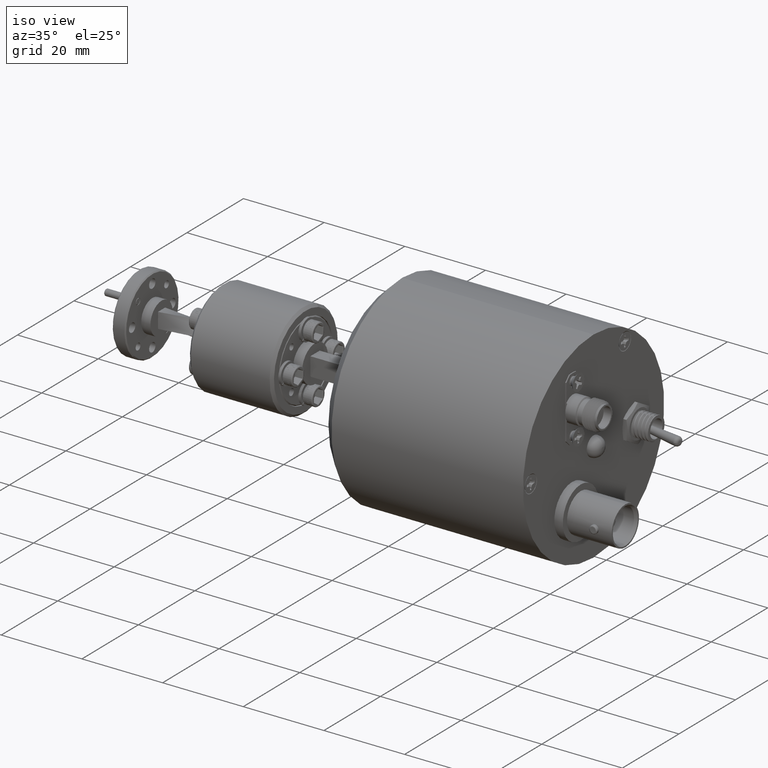
[diagram: clean part render]
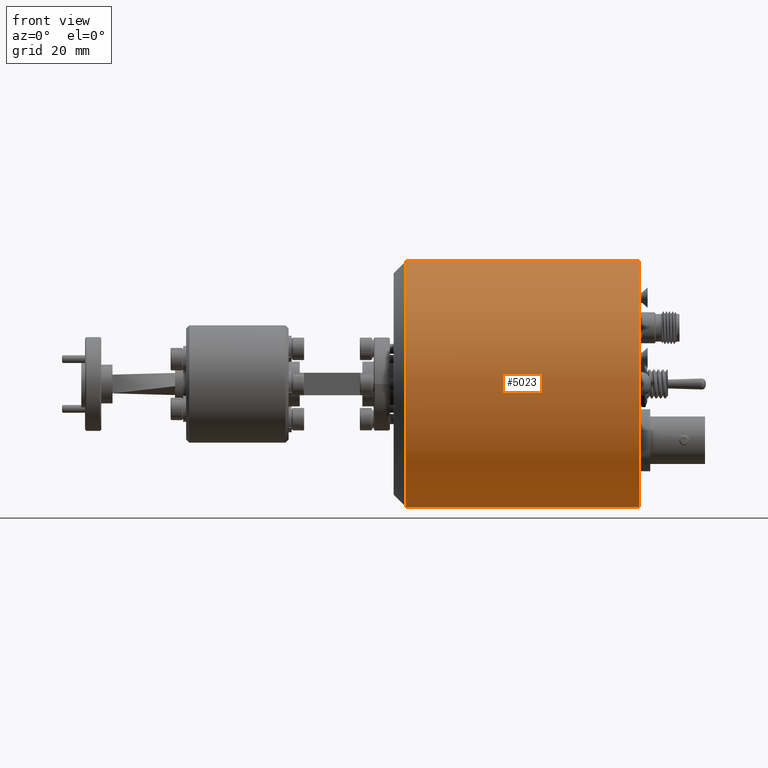
[diagram: tour spotlight — one face highlighted and labeled with its STEP entity id]
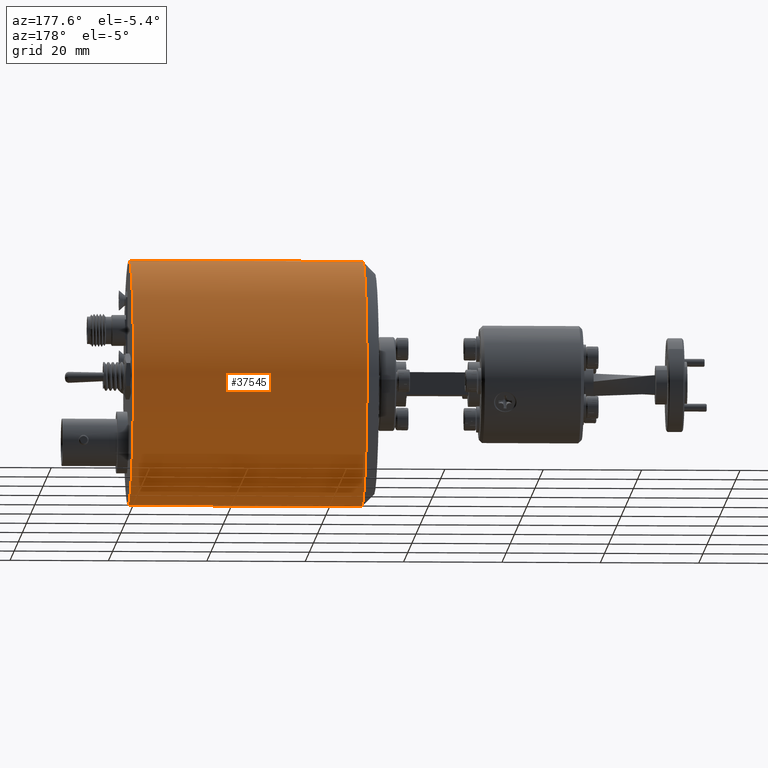
[diagram: tour spotlight — one face highlighted and labeled with its STEP entity id]
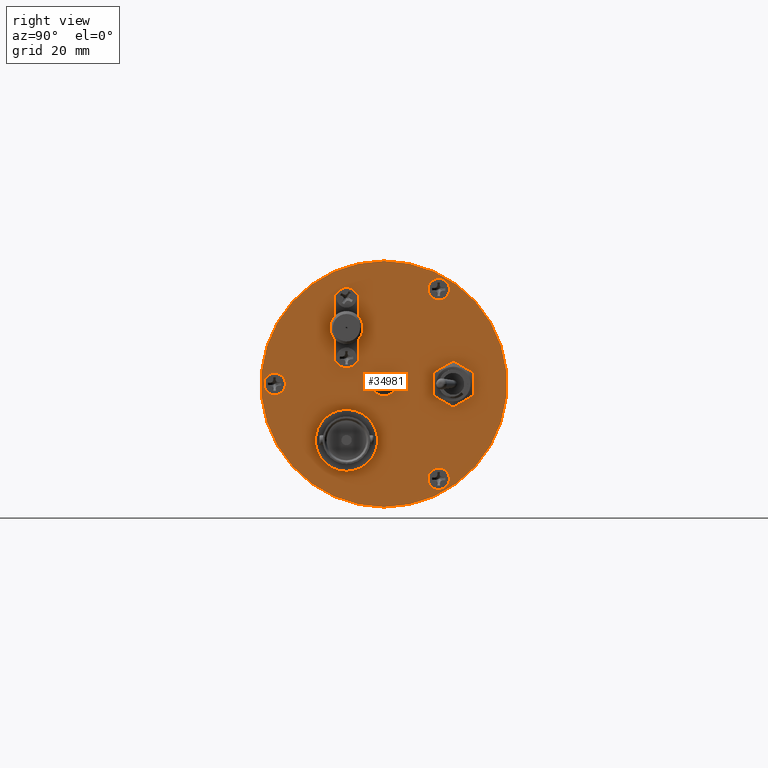
[diagram: tour spotlight — one face highlighted and labeled with its STEP entity id]
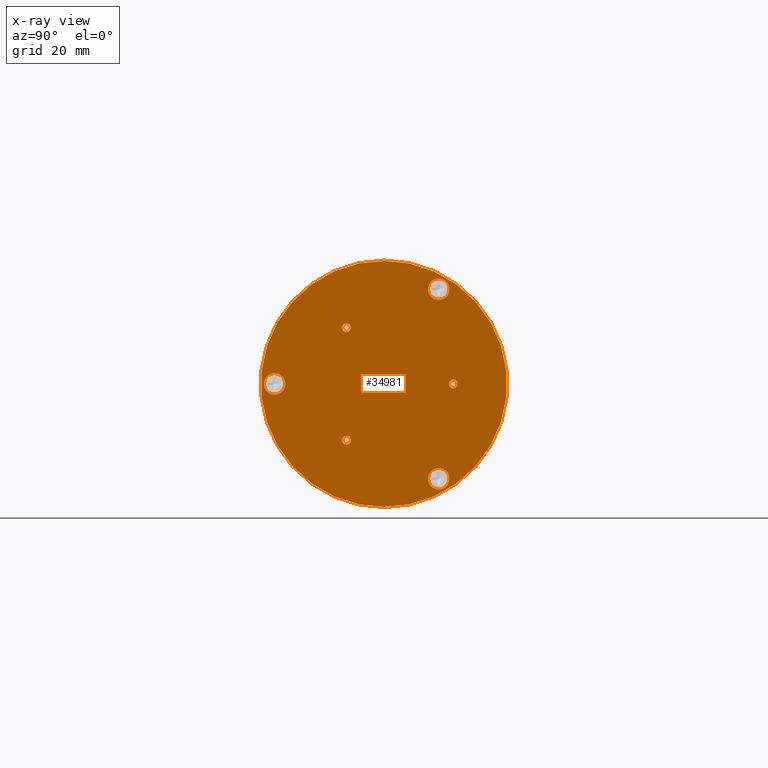
[diagram: x-ray of the same camera — body ghosted, this tour face saturated]
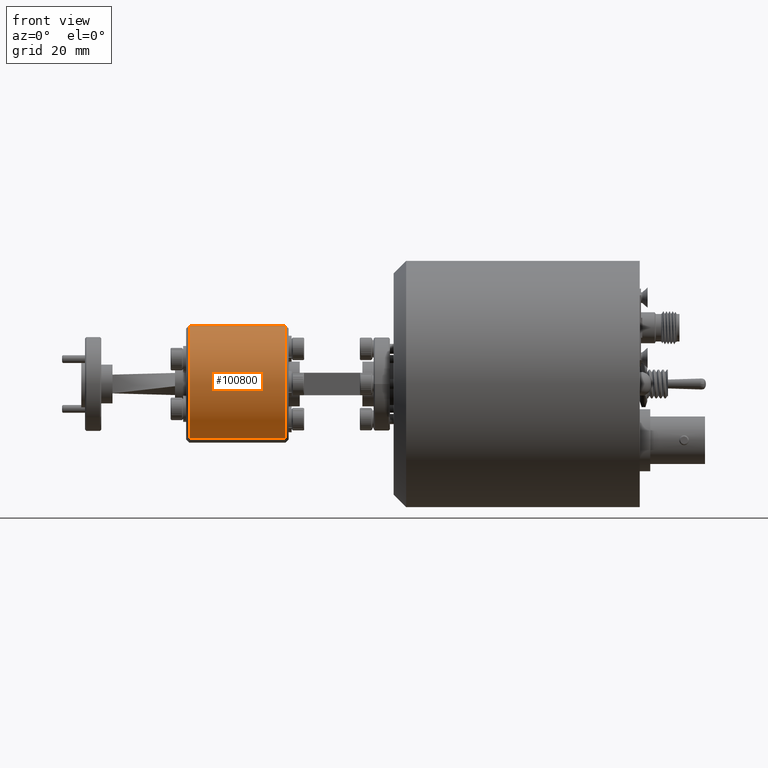
[diagram: tour spotlight — one face highlighted and labeled with its STEP entity id]
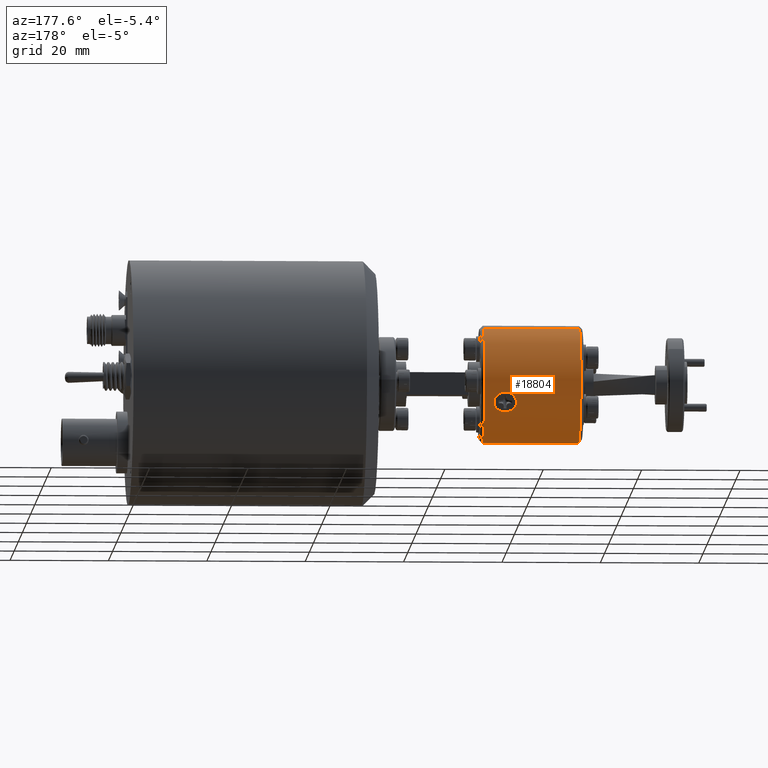
[diagram: tour spotlight — one face highlighted and labeled with its STEP entity id]
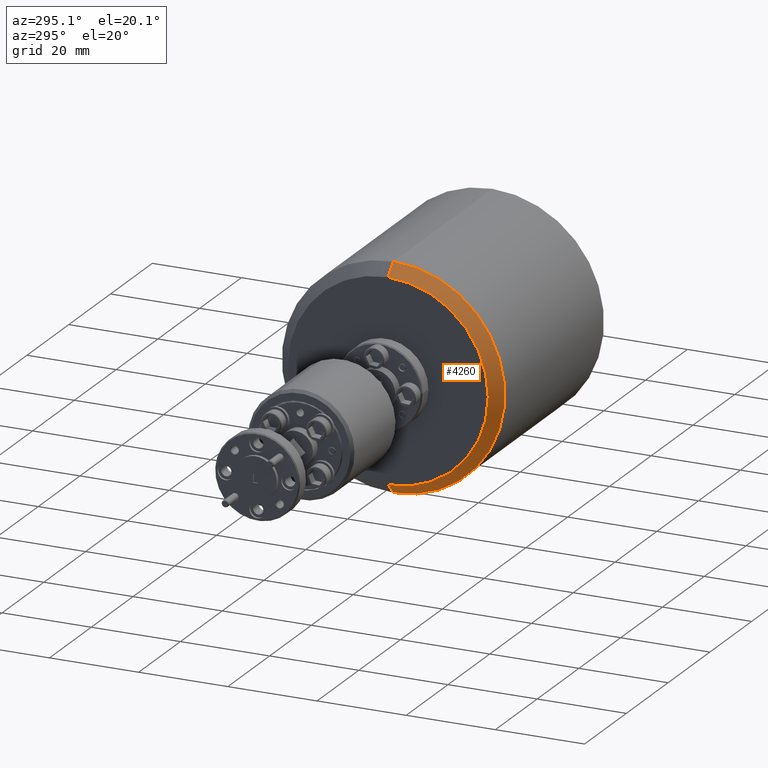
[diagram: tour spotlight — one face highlighted and labeled with its STEP entity id]
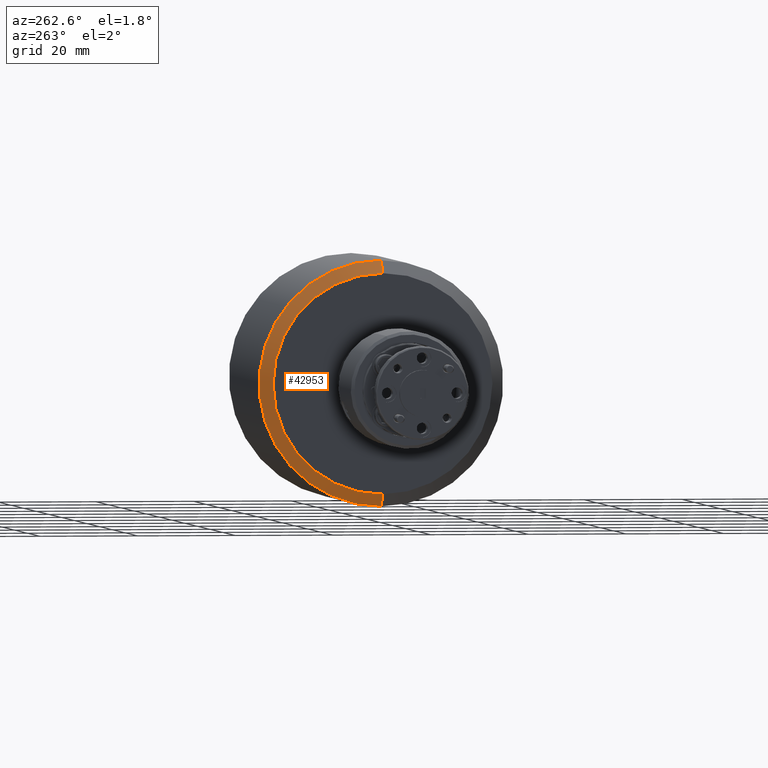
[diagram: tour spotlight — one face highlighted and labeled with its STEP entity id]
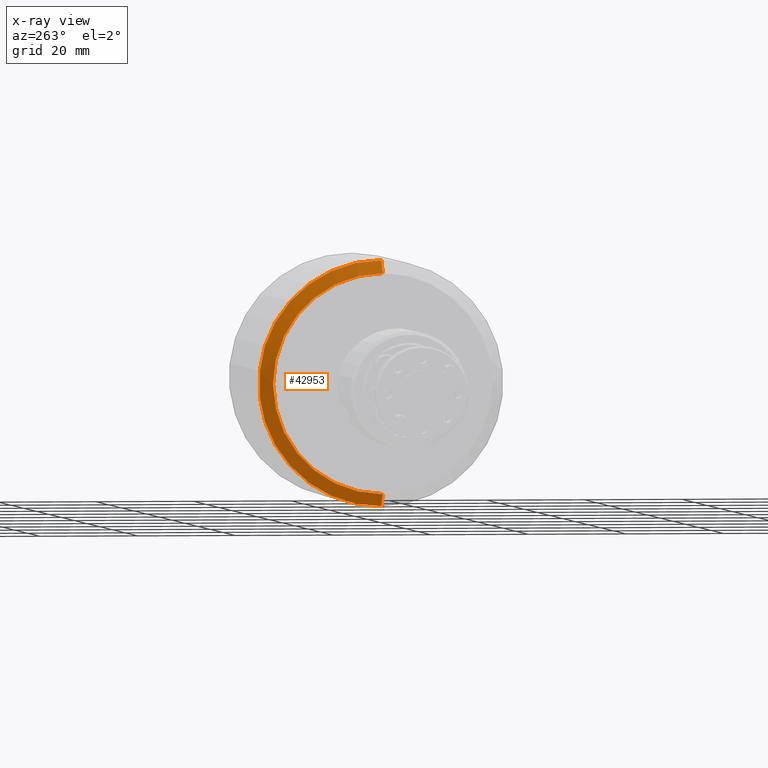
[diagram: x-ray of the same camera — body ghosted, this tour face saturated]
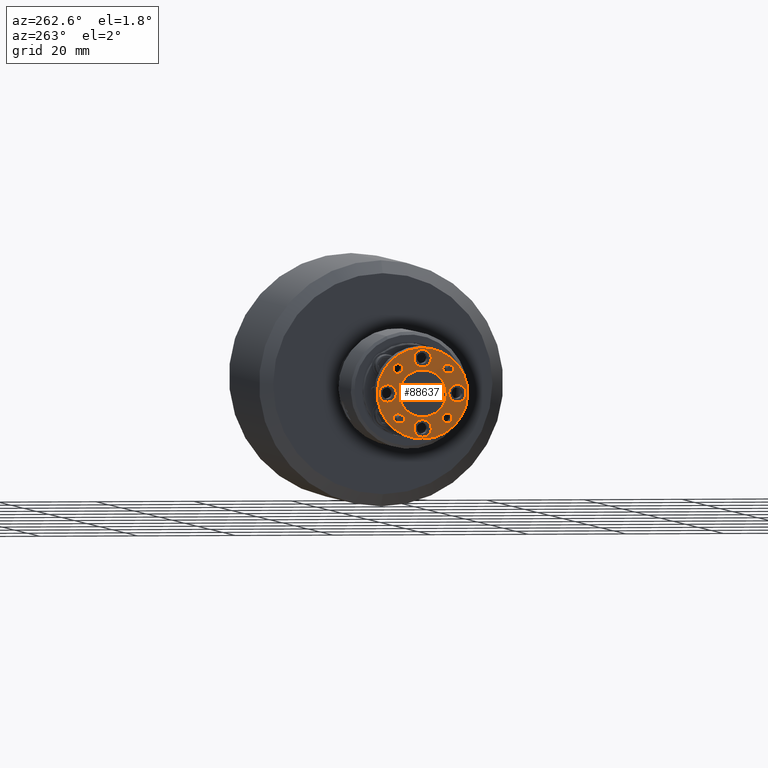
[diagram: tour spotlight — one face highlighted and labeled with its STEP entity id]
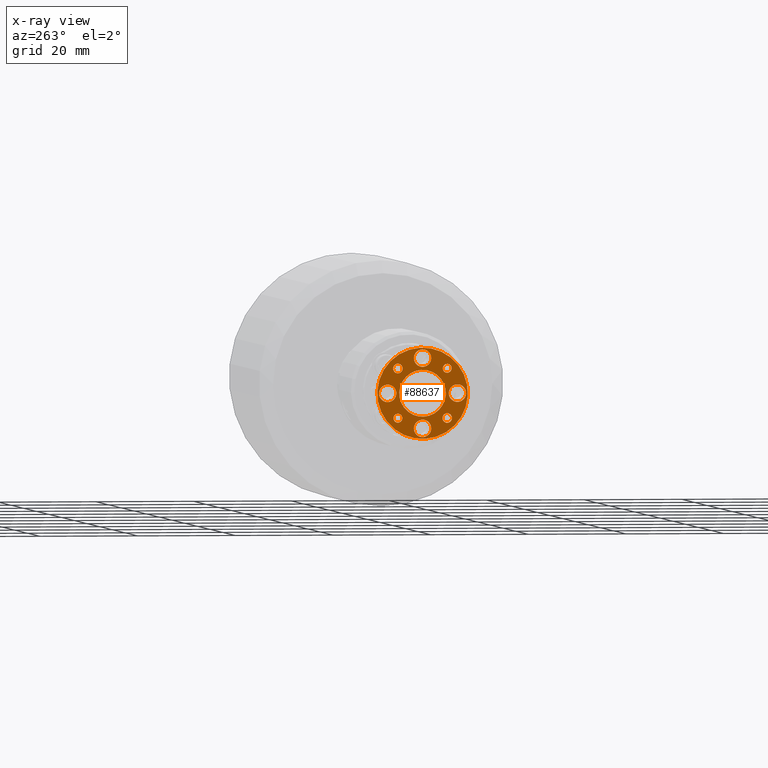
[diagram: x-ray of the same camera — body ghosted, this tour face saturated]
A machine part: a face-by-face anatomy tour. The part has 2901 B-rep faces; the first image is the clean iso view, then the 8 largest visible faces are spotlighted one at a time (largest first), each with its STEP entity span.

Face 1 — front view, entity #5023. In plain terms, the highlighted cylindrical surface (partial cylindrical patch) has radius 24.9999 mm, axis along (1, -0, -0).
Definition (entity closure, byte-faithful):
#1015 = VERTEX_POINT ( 'NONE', #23705 ) ;
#1853 = LINE ( 'NONE', #98099, #14449 ) ;
#3042 = EDGE_CURVE ( 'NONE', #36737, #1015, #73065, .T. ) ;
#3264 = CARTESIAN_POINT ( 'NONE',  ( 59.93668861886625600, 35.55979927225279600, 62.33555134325450800 ) ) ;
#4314 = CARTESIAN_POINT ( 'NONE',  ( 59.93668861886625600, 35.55979927225279600, 37.33560134325451700 ) ) ;
#5023 = ADVANCED_FACE ( 'NONE', ( #15307 ), #70908, .T. ) ;
#8541 = DIRECTION ( 'NONE',  ( 0.0000000000000000000, 0.0000000000000000000, -1.000000000000000000 ) ) ;
#9988 = DIRECTION ( 'NONE',  ( 1.000000000000000000, -0.0000000000000000000, -0.0000000000000000000 ) ) ;
#14449 = VECTOR ( 'NONE', #49741, 1000.000000000000000 ) ;
#14714 = AXIS2_PLACEMENT_3D ( 'NONE', #77599, #29238, #101553 ) ;
#15307 = FACE_OUTER_BOUND ( 'NONE', #67495, .T. ) ;
#17985 = AXIS2_PLACEMENT_3D ( 'NONE', #4314, #84092, #27976 ) ;
#23705 = CARTESIAN_POINT ( 'NONE',  ( 59.93668861886625600, 35.55979927225279600, 12.33565134325451900 ) ) ;
#27976 = DIRECTION ( 'NONE',  ( 0.0000000000000000000, 0.0000000000000000000, -1.000000000000000000 ) ) ;
#28735 = ORIENTED_EDGE ( 'NONE', *, *, #54564, .F. ) ;
#29238 = DIRECTION ( 'NONE',  ( 1.000000000000000000, -0.0000000000000000000, -0.0000000000000000000 ) ) ;
#29392 = LINE ( 'NONE', #3264, #31970 ) ;
#31970 = VECTOR ( 'NONE', #9988, 1000.000000000000000 ) ;
#36737 = VERTEX_POINT ( 'NONE', #88399 ) ;
#37026 = CARTESIAN_POINT ( 'NONE',  ( 12.47668861886626400, 35.55979927225279600, 62.33555134325450800 ) ) ;
#42803 = ORIENTED_EDGE ( 'NONE', *, *, #3042, .F. ) ;
#44595 = EDGE_CURVE ( 'NONE', #88217, #1015, #1853, .T. ) ;
#49741 = DIRECTION ( 'NONE',  ( 1.000000000000000000, -0.0000000000000000000, -0.0000000000000000000 ) ) ;
#49780 = DIRECTION ( 'NONE',  ( 1.000000000000000000, -0.0000000000000000000, -0.0000000000000000000 ) ) ;
#54564 = EDGE_CURVE ( 'NONE', #96309, #36737, #29392, .T. ) ;
#64760 = ORIENTED_EDGE ( 'NONE', *, *, #96378, .T. ) ;
#67495 = EDGE_LOOP ( 'NONE', ( #28735, #64760, #89188, #42803 ) ) ;
#70908 = CYLINDRICAL_SURFACE ( 'NONE', #17985, 24.99994999999999500 ) ;
#71694 = CARTESIAN_POINT ( 'NONE',  ( 12.47668861886626400, 35.55979927225279600, 12.33565134325452600 ) ) ;
#73065 = CIRCLE ( 'NONE', #104377, 24.99994999999999800 ) ;
#77599 = CARTESIAN_POINT ( 'NONE',  ( 12.47668861886626400, 35.55979927225279600, 37.33560134325451700 ) ) ;
#83132 = CIRCLE ( 'NONE', #14714, 24.99994999999999100 ) ;
#84092 = DIRECTION ( 'NONE',  ( 1.000000000000000000, -0.0000000000000000000, -0.0000000000000000000 ) ) ;
#88217 = VERTEX_POINT ( 'NONE', #71694 ) ;
#88399 = CARTESIAN_POINT ( 'NONE',  ( 59.93668861886625600, 35.55979927225279600, 62.33555134325451500 ) ) ;
#89188 = ORIENTED_EDGE ( 'NONE', *, *, #44595, .T. ) ;
#96309 = VERTEX_POINT ( 'NONE', #37026 ) ;
#96378 = EDGE_CURVE ( 'NONE', #96309, #88217, #83132, .T. ) ;
#98099 = CARTESIAN_POINT ( 'NONE',  ( 59.93668861886625600, 35.55979927225279600, 12.33565134325452200 ) ) ;
#98141 = CARTESIAN_POINT ( 'NONE',  ( 59.93668861886625600, 35.55979927225279600, 37.33560134325451700 ) ) ;
#101553 = DIRECTION ( 'NONE',  ( 0.0000000000000000000, 0.0000000000000000000, -1.000000000000000000 ) ) ;
#104377 = AXIS2_PLACEMENT_3D ( 'NONE', #98141, #49780, #8541 ) ;

Face 2 — auxiliary view, entity #37545. In plain terms, the highlighted cylindrical surface (partial cylindrical patch) has radius 24.9999 mm, axis along (1, -0, -0).
Definition (entity closure, byte-faithful):
#1015 = VERTEX_POINT ( 'NONE', #23705 ) ;
#1853 = LINE ( 'NONE', #98099, #14449 ) ;
#2882 = AXIS2_PLACEMENT_3D ( 'NONE', #77588, #13702, #86437 ) ;
#3264 = CARTESIAN_POINT ( 'NONE',  ( 59.93668861886625600, 35.55979927225279600, 62.33555134325450800 ) ) ;
#4168 = DIRECTION ( 'NONE',  ( 1.000000000000000000, -0.0000000000000000000, -0.0000000000000000000 ) ) ;
#9988 = DIRECTION ( 'NONE',  ( 1.000000000000000000, -0.0000000000000000000, -0.0000000000000000000 ) ) ;
#13702 = DIRECTION ( 'NONE',  ( 1.000000000000000000, -0.0000000000000000000, -0.0000000000000000000 ) ) ;
#14449 = VECTOR ( 'NONE', #49741, 1000.000000000000000 ) ;
#16278 = AXIS2_PLACEMENT_3D ( 'NONE', #22908, #55338, #31034 ) ;
#18947 = ORIENTED_EDGE ( 'NONE', *, *, #69982, .T. ) ;
#22908 = CARTESIAN_POINT ( 'NONE',  ( 59.93668861886625600, 35.55979927225279600, 37.33560134325451700 ) ) ;
#23705 = CARTESIAN_POINT ( 'NONE',  ( 59.93668861886625600, 35.55979927225279600, 12.33565134325451900 ) ) ;
#27355 = ORIENTED_EDGE ( 'NONE', *, *, #54564, .T. ) ;
#29392 = LINE ( 'NONE', #3264, #31970 ) ;
#29509 = DIRECTION ( 'NONE',  ( 0.0000000000000000000, 0.0000000000000000000, -1.000000000000000000 ) ) ;
#31034 = DIRECTION ( 'NONE',  ( 0.0000000000000000000, 0.0000000000000000000, -1.000000000000000000 ) ) ;
#31970 = VECTOR ( 'NONE', #9988, 1000.000000000000000 ) ;
#36737 = VERTEX_POINT ( 'NONE', #88399 ) ;
#37026 = CARTESIAN_POINT ( 'NONE',  ( 12.47668861886626400, 35.55979927225279600, 62.33555134325450800 ) ) ;
#37545 = ADVANCED_FACE ( 'NONE', ( #102488 ), #89938, .T. ) ;
#44595 = EDGE_CURVE ( 'NONE', #88217, #1015, #1853, .T. ) ;
#46818 = EDGE_CURVE ( 'NONE', #1015, #36737, #59759, .T. ) ;
#48128 = ORIENTED_EDGE ( 'NONE', *, *, #44595, .F. ) ;
#49741 = DIRECTION ( 'NONE',  ( 1.000000000000000000, -0.0000000000000000000, -0.0000000000000000000 ) ) ;
#52815 = CARTESIAN_POINT ( 'NONE',  ( 12.47668861886626400, 35.55979927225279600, 37.33560134325451700 ) ) ;
#54564 = EDGE_CURVE ( 'NONE', #96309, #36737, #29392, .T. ) ;
#55338 = DIRECTION ( 'NONE',  ( 1.000000000000000000, -0.0000000000000000000, -0.0000000000000000000 ) ) ;
#56572 = AXIS2_PLACEMENT_3D ( 'NONE', #52815, #4168, #29509 ) ;
#59759 = CIRCLE ( 'NONE', #16278, 24.99994999999999800 ) ;
#69982 = EDGE_CURVE ( 'NONE', #88217, #96309, #89890, .T. ) ;
#71694 = CARTESIAN_POINT ( 'NONE',  ( 12.47668861886626400, 35.55979927225279600, 12.33565134325452600 ) ) ;
#77588 = CARTESIAN_POINT ( 'NONE',  ( 59.93668861886625600, 35.55979927225279600, 37.33560134325451700 ) ) ;
#81128 = EDGE_LOOP ( 'NONE', ( #18947, #27355, #86776, #48128 ) ) ;
#86437 = DIRECTION ( 'NONE',  ( 0.0000000000000000000, 0.0000000000000000000, -1.000000000000000000 ) ) ;
#86776 = ORIENTED_EDGE ( 'NONE', *, *, #46818, .F. ) ;
#88217 = VERTEX_POINT ( 'NONE', #71694 ) ;
#88399 = CARTESIAN_POINT ( 'NONE',  ( 59.93668861886625600, 35.55979927225279600, 62.33555134325451500 ) ) ;
#89890 = CIRCLE ( 'NONE', #56572, 24.99994999999999100 ) ;
#89938 = CYLINDRICAL_SURFACE ( 'NONE', #2882, 24.99994999999999500 ) ;
#96309 = VERTEX_POINT ( 'NONE', #37026 ) ;
#98099 = CARTESIAN_POINT ( 'NONE',  ( 59.93668861886625600, 35.55979927225279600, 12.33565134325452200 ) ) ;
#102488 = FACE_OUTER_BOUND ( 'NONE', #81128, .T. ) ;

Face 3 — right view, entity #34981. An x-ray twin of the same camera follows (body ghosted, this face saturated) — the face is partly hidden behind the body. In plain terms, the highlighted planar face has unit normal (1, 0, -0).
Definition (entity closure, byte-faithful):
#1015 = VERTEX_POINT ( 'NONE', #23705 ) ;
#1382 = EDGE_CURVE ( 'NONE', #52220, #23900, #33989, .T. ) ;
#2545 = EDGE_LOOP ( 'NONE', ( #24631, #85180 ) ) ;
#3022 = CIRCLE ( 'NONE', #33622, 0.8826499999999987100 ) ;
#3042 = EDGE_CURVE ( 'NONE', #36737, #1015, #73065, .T. ) ;
#4596 = ORIENTED_EDGE ( 'NONE', *, *, #88374, .F. ) ;
#5447 = EDGE_CURVE ( 'NONE', #86157, #66723, #97368, .T. ) ;
#5856 = CARTESIAN_POINT ( 'NONE',  ( 59.93668861886625600, 49.62346738221214100, 38.21825134325451500 ) ) ;
#6154 = VERTEX_POINT ( 'NONE', #10019 ) ;
#6991 = FACE_BOUND ( 'NONE', #91827, .T. ) ;
#7381 = EDGE_LOOP ( 'NONE', ( #31845, #57697 ) ) ;
#8541 = DIRECTION ( 'NONE',  ( 0.0000000000000000000, 0.0000000000000000000, -1.000000000000000000 ) ) ;
#10019 = CARTESIAN_POINT ( 'NONE',  ( 59.93668861886625600, 27.93979927225279500, 25.02295134325451500 ) ) ;
#10336 = VERTEX_POINT ( 'NONE', #48686 ) ;
#11200 = VERTEX_POINT ( 'NONE', #44455 ) ;
#12362 = DIRECTION ( 'NONE',  ( 0.0000000000000000000, 0.0000000000000000000, -1.000000000000000000 ) ) ;
#12517 = CARTESIAN_POINT ( 'NONE',  ( 59.93668861886625600, 35.55979927225279600, 37.33560134325451700 ) ) ;
#12593 = CIRCLE ( 'NONE', #90516, 2.184400000000002800 ) ;
#13252 = DIRECTION ( 'NONE',  ( 0.0000000000000000000, 0.0000000000000000000, -1.000000000000000000 ) ) ;
#13325 = CARTESIAN_POINT ( 'NONE',  ( 59.93668861886625600, 46.67229927225279300, 56.58301594236365900 ) ) ;
#13364 = CARTESIAN_POINT ( 'NONE',  ( 59.93668861886625600, 46.67229927225279300, 18.08818674414537100 ) ) ;
#14544 = FACE_BOUND ( 'NONE', #67976, .T. ) ;
#15446 = AXIS2_PLACEMENT_3D ( 'NONE', #66920, #51386, #42975 ) ;
#15963 = CARTESIAN_POINT ( 'NONE',  ( 59.93668861886625600, 46.67229927225279300, 54.39861594236365500 ) ) ;
#16278 = AXIS2_PLACEMENT_3D ( 'NONE', #22908, #55338, #31034 ) ;
#16284 = EDGE_CURVE ( 'NONE', #23900, #52220, #77434, .T. ) ;
#19361 = AXIS2_PLACEMENT_3D ( 'NONE', #12517, #83491, #27348 ) ;
#19373 = EDGE_CURVE ( 'NONE', #54201, #74648, #84682, .T. ) ;
#19618 = FACE_BOUND ( 'NONE', #96738, .T. ) ;
#19997 = AXIS2_PLACEMENT_3D ( 'NONE', #71994, #96012, #23629 ) ;
#21060 = ORIENTED_EDGE ( 'NONE', *, *, #46818, .T. ) ;
#21367 = ORIENTED_EDGE ( 'NONE', *, *, #5447, .F. ) ;
#21442 = DIRECTION ( 'NONE',  ( 0.0000000000000000000, 0.0000000000000000000, -1.000000000000000000 ) ) ;
#22092 = CARTESIAN_POINT ( 'NONE',  ( 59.93668861886625600, 27.93979927225279500, 25.90560134325451700 ) ) ;
#22514 = DIRECTION ( 'NONE',  ( 0.0000000000000000000, 0.0000000000000000000, -1.000000000000000000 ) ) ;
#22564 = CARTESIAN_POINT ( 'NONE',  ( 59.93668861886625600, 46.67229927225279300, 15.90378674414537300 ) ) ;
#22908 = CARTESIAN_POINT ( 'NONE',  ( 59.93668861886625600, 35.55979927225279600, 37.33560134325451700 ) ) ;
#23629 = DIRECTION ( 'NONE',  ( 0.0000000000000000000, 0.0000000000000000000, -1.000000000000000000 ) ) ;
#23691 = DIRECTION ( 'NONE',  ( 1.000000000000000000, -0.0000000000000000000, -0.0000000000000000000 ) ) ;
#23705 = CARTESIAN_POINT ( 'NONE',  ( 59.93668861886625600, 35.55979927225279600, 12.33565134325451900 ) ) ;
#23900 = VERTEX_POINT ( 'NONE', #5856 ) ;
#24130 = PLANE ( 'NONE',  #98063 ) ;
#24142 = CARTESIAN_POINT ( 'NONE',  ( 59.93668861886625600, 46.67229927225279300, 58.76741594236366200 ) ) ;
#24631 = ORIENTED_EDGE ( 'NONE', *, *, #54130, .F. ) ;
#25739 = DIRECTION ( 'NONE',  ( 0.0000000000000000000, 0.0000000000000000000, -1.000000000000000000 ) ) ;
#25825 = CARTESIAN_POINT ( 'NONE',  ( 59.93668861886625600, 13.33479927225279500, 39.52000134325452100 ) ) ;
#26137 = CIRCLE ( 'NONE', #15446, 0.8826499999999987100 ) ;
#27348 = DIRECTION ( 'NONE',  ( 0.0000000000000000000, 0.0000000000000000000, -1.000000000000000000 ) ) ;
#30324 = DIRECTION ( 'NONE',  ( 1.000000000000000000, -0.0000000000000000000, -0.0000000000000000000 ) ) ;
#31034 = DIRECTION ( 'NONE',  ( 0.0000000000000000000, 0.0000000000000000000, -1.000000000000000000 ) ) ;
#31845 = ORIENTED_EDGE ( 'NONE', *, *, #19373, .F. ) ;
#32396 = VERTEX_POINT ( 'NONE', #49895 ) ;
#33622 = AXIS2_PLACEMENT_3D ( 'NONE', #45284, #92981, #100675 ) ;
#33989 = CIRCLE ( 'NONE', #38729, 0.8826499999999987100 ) ;
#34981 = ADVANCED_FACE ( 'NONE', ( #6991, #38567, #63748, #19618, #14544, #71361, #49890, #68823 ), #24130, .T. ) ;
#35428 = VERTEX_POINT ( 'NONE', #101991 ) ;
#35928 = CARTESIAN_POINT ( 'NONE',  ( 59.93668861886625600, 46.67229927225279300, 20.27258674414537200 ) ) ;
#36737 = VERTEX_POINT ( 'NONE', #88399 ) ;
#37042 = AXIS2_PLACEMENT_3D ( 'NONE', #49523, #41802, #97203 ) ;
#37646 = AXIS2_PLACEMENT_3D ( 'NONE', #67349, #65956, #25739 ) ;
#38567 = FACE_BOUND ( 'NONE', #91784, .T. ) ;
#38729 = AXIS2_PLACEMENT_3D ( 'NONE', #56486, #23691, #72053 ) ;
#38821 = ORIENTED_EDGE ( 'NONE', *, *, #53087, .F. ) ;
#39770 = AXIS2_PLACEMENT_3D ( 'NONE', #79012, #30324, #47597 ) ;
#40264 = CIRCLE ( 'NONE', #39770, 0.8826499999999987100 ) ;
#40652 = ORIENTED_EDGE ( 'NONE', *, *, #1382, .F. ) ;
#41085 = DIRECTION ( 'NONE',  ( 1.000000000000000000, 0.0000000000000000000, -0.0000000000000000000 ) ) ;
#41802 = DIRECTION ( 'NONE',  ( 1.000000000000000000, -0.0000000000000000000, -0.0000000000000000000 ) ) ;
#42011 = ORIENTED_EDGE ( 'NONE', *, *, #51689, .F. ) ;
#42975 = DIRECTION ( 'NONE',  ( 0.0000000000000000000, 0.0000000000000000000, -1.000000000000000000 ) ) ;
#44455 = CARTESIAN_POINT ( 'NONE',  ( 59.93668861886625600, 27.93979927225279500, 26.78825134325452200 ) ) ;
#45284 = CARTESIAN_POINT ( 'NONE',  ( 59.93668861886625600, 27.93979927225279500, 48.76560134325451700 ) ) ;
#45378 = DIRECTION ( 'NONE',  ( 1.000000000000000000, -0.0000000000000000000, -0.0000000000000000000 ) ) ;
#46818 = EDGE_CURVE ( 'NONE', #1015, #36737, #59759, .T. ) ;
#47597 = DIRECTION ( 'NONE',  ( 0.0000000000000000000, 0.0000000000000000000, -1.000000000000000000 ) ) ;
#48686 = CARTESIAN_POINT ( 'NONE',  ( 59.93668861886625600, 35.55979927225279600, 36.45295134325451900 ) ) ;
#49523 = CARTESIAN_POINT ( 'NONE',  ( 59.93668861886625600, 49.62346738221214100, 37.33560134325451700 ) ) ;
#49780 = DIRECTION ( 'NONE',  ( 1.000000000000000000, -0.0000000000000000000, -0.0000000000000000000 ) ) ;
#49890 = FACE_BOUND ( 'NONE', #98034, .T. ) ;
#49895 = CARTESIAN_POINT ( 'NONE',  ( 59.93668861886625600, 27.93979927225279500, 49.64825134325451500 ) ) ;
#50658 = VERTEX_POINT ( 'NONE', #70958 ) ;
#51386 = DIRECTION ( 'NONE',  ( 1.000000000000000000, -0.0000000000000000000, -0.0000000000000000000 ) ) ;
#51689 = EDGE_CURVE ( 'NONE', #6154, #11200, #52563, .T. ) ;
#52220 = VERTEX_POINT ( 'NONE', #53855 ) ;
#52563 = CIRCLE ( 'NONE', #19997, 0.8826500000000021600 ) ;
#52724 = AXIS2_PLACEMENT_3D ( 'NONE', #95112, #77127, #66734 ) ;
#52889 = DIRECTION ( 'NONE',  ( 1.000000000000000000, -0.0000000000000000000, -0.0000000000000000000 ) ) ;
#53087 = EDGE_CURVE ( 'NONE', #10336, #82833, #102880, .T. ) ;
#53671 = EDGE_CURVE ( 'NONE', #11200, #6154, #81388, .T. ) ;
#53855 = CARTESIAN_POINT ( 'NONE',  ( 59.93668861886625600, 49.62346738221214100, 36.45295134325451900 ) ) ;
#54130 = EDGE_CURVE ( 'NONE', #35428, #32396, #3022, .T. ) ;
#54201 = VERTEX_POINT ( 'NONE', #15963 ) ;
#55338 = DIRECTION ( 'NONE',  ( 1.000000000000000000, -0.0000000000000000000, -0.0000000000000000000 ) ) ;
#55874 = CARTESIAN_POINT ( 'NONE',  ( 59.93668861886625600, 35.55979927225279600, 37.33560134325451700 ) ) ;
#56486 = CARTESIAN_POINT ( 'NONE',  ( 59.93668861886625600, 49.62346738221214100, 37.33560134325451700 ) ) ;
#56529 = CIRCLE ( 'NONE', #92557, 2.184399999999999700 ) ;
#57697 = ORIENTED_EDGE ( 'NONE', *, *, #72346, .F. ) ;
#58470 = EDGE_LOOP ( 'NONE', ( #21060, #66430 ) ) ;
#59759 = CIRCLE ( 'NONE', #16278, 24.99994999999999800 ) ;
#60602 = ORIENTED_EDGE ( 'NONE', *, *, #99935, .F. ) ;
#63748 = FACE_BOUND ( 'NONE', #2545, .T. ) ;
#65956 = DIRECTION ( 'NONE',  ( 1.000000000000000000, -0.0000000000000000000, -0.0000000000000000000 ) ) ;
#66170 = AXIS2_PLACEMENT_3D ( 'NONE', #85632, #45378, #13252 ) ;
#66430 = ORIENTED_EDGE ( 'NONE', *, *, #3042, .T. ) ;
#66723 = VERTEX_POINT ( 'NONE', #35928 ) ;
#66734 = DIRECTION ( 'NONE',  ( 0.0000000000000000000, 0.0000000000000000000, -1.000000000000000000 ) ) ;
#66920 = CARTESIAN_POINT ( 'NONE',  ( 59.93668861886625600, 35.55979927225279600, 37.33560134325451700 ) ) ;
#67349 = CARTESIAN_POINT ( 'NONE',  ( 59.93668861886625600, 46.67229927225279300, 18.08818674414537100 ) ) ;
#67976 = EDGE_LOOP ( 'NONE', ( #21367, #100317 ) ) ;
#68823 = FACE_OUTER_BOUND ( 'NONE', #58470, .T. ) ;
#69781 = DIRECTION ( 'NONE',  ( 1.000000000000000000, -0.0000000000000000000, -0.0000000000000000000 ) ) ;
#70142 = DIRECTION ( 'NONE',  ( 1.000000000000000000, -0.0000000000000000000, -0.0000000000000000000 ) ) ;
#70958 = CARTESIAN_POINT ( 'NONE',  ( 59.93668861886625600, 13.33479927225279500, 35.15120134325451300 ) ) ;
#71361 = FACE_BOUND ( 'NONE', #7381, .T. ) ;
#71575 = ORIENTED_EDGE ( 'NONE', *, *, #53671, .F. ) ;
#71994 = CARTESIAN_POINT ( 'NONE',  ( 59.93668861886625600, 27.93979927225279500, 25.90560134325451700 ) ) ;
#72053 = DIRECTION ( 'NONE',  ( 0.0000000000000000000, 0.0000000000000000000, -1.000000000000000000 ) ) ;
#72072 = CARTESIAN_POINT ( 'NONE',  ( 59.93668861886625600, 35.55979927225279600, 38.21825134325451500 ) ) ;
#72346 = EDGE_CURVE ( 'NONE', #74648, #54201, #12593, .T. ) ;
#73065 = CIRCLE ( 'NONE', #104377, 24.99994999999999800 ) ;
#73982 = ORIENTED_EDGE ( 'NONE', *, *, #74328, .F. ) ;
#74328 = EDGE_CURVE ( 'NONE', #82833, #10336, #26137, .T. ) ;
#74648 = VERTEX_POINT ( 'NONE', #24142 ) ;
#77127 = DIRECTION ( 'NONE',  ( 1.000000000000000000, -0.0000000000000000000, -0.0000000000000000000 ) ) ;
#77434 = CIRCLE ( 'NONE', #37042, 0.8826499999999987100 ) ;
#78562 = DIRECTION ( 'NONE',  ( 1.000000000000000000, -0.0000000000000000000, -0.0000000000000000000 ) ) ;
#78986 = VERTEX_POINT ( 'NONE', #25825 ) ;
#79012 = CARTESIAN_POINT ( 'NONE',  ( 59.93668861886625600, 27.93979927225279500, 48.76560134325451700 ) ) ;
#80631 = DIRECTION ( 'NONE',  ( -0.0000000000000000000, 0.0000000000000000000, -1.000000000000000000 ) ) ;
#81388 = CIRCLE ( 'NONE', #103888, 0.8826500000000021600 ) ;
#82833 = VERTEX_POINT ( 'NONE', #72072 ) ;
#83491 = DIRECTION ( 'NONE',  ( 1.000000000000000000, -0.0000000000000000000, -0.0000000000000000000 ) ) ;
#84148 = ORIENTED_EDGE ( 'NONE', *, *, #16284, .F. ) ;
#84515 = AXIS2_PLACEMENT_3D ( 'NONE', #13325, #69781, #21442 ) ;
#84682 = CIRCLE ( 'NONE', #84515, 2.184400000000002800 ) ;
#85180 = ORIENTED_EDGE ( 'NONE', *, *, #86981, .F. ) ;
#85632 = CARTESIAN_POINT ( 'NONE',  ( 59.93668861886625600, 13.33479927225279500, 37.33560134325451700 ) ) ;
#86157 = VERTEX_POINT ( 'NONE', #22564 ) ;
#86722 = DIRECTION ( 'NONE',  ( 0.0000000000000000000, 0.0000000000000000000, -1.000000000000000000 ) ) ;
#86981 = EDGE_CURVE ( 'NONE', #32396, #35428, #40264, .T. ) ;
#88374 = EDGE_CURVE ( 'NONE', #78986, #50658, #90701, .T. ) ;
#88399 = CARTESIAN_POINT ( 'NONE',  ( 59.93668861886625600, 35.55979927225279600, 62.33555134325451500 ) ) ;
#90516 = AXIS2_PLACEMENT_3D ( 'NONE', #101214, #52889, #12362 ) ;
#90701 = CIRCLE ( 'NONE', #66170, 2.184400000000002800 ) ;
#91784 = EDGE_LOOP ( 'NONE', ( #40652, #84148 ) ) ;
#91827 = EDGE_LOOP ( 'NONE', ( #38821, #73982 ) ) ;
#92557 = AXIS2_PLACEMENT_3D ( 'NONE', #13364, #70142, #22514 ) ;
#92981 = DIRECTION ( 'NONE',  ( 1.000000000000000000, -0.0000000000000000000, -0.0000000000000000000 ) ) ;
#95112 = CARTESIAN_POINT ( 'NONE',  ( 59.93668861886625600, 13.33479927225279500, 37.33560134325451700 ) ) ;
#96012 = DIRECTION ( 'NONE',  ( 1.000000000000000000, -0.0000000000000000000, -0.0000000000000000000 ) ) ;
#96339 = EDGE_CURVE ( 'NONE', #66723, #86157, #56529, .T. ) ;
#96738 = EDGE_LOOP ( 'NONE', ( #42011, #71575 ) ) ;
#97203 = DIRECTION ( 'NONE',  ( 0.0000000000000000000, 0.0000000000000000000, -1.000000000000000000 ) ) ;
#97368 = CIRCLE ( 'NONE', #37646, 2.184399999999999700 ) ;
#98034 = EDGE_LOOP ( 'NONE', ( #60602, #4596 ) ) ;
#98063 = AXIS2_PLACEMENT_3D ( 'NONE', #55874, #41085, #80631 ) ;
#98141 = CARTESIAN_POINT ( 'NONE',  ( 59.93668861886625600, 35.55979927225279600, 37.33560134325451700 ) ) ;
#99935 = EDGE_CURVE ( 'NONE', #50658, #78986, #104077, .T. ) ;
#100317 = ORIENTED_EDGE ( 'NONE', *, *, #96339, .F. ) ;
#100675 = DIRECTION ( 'NONE',  ( 0.0000000000000000000, 0.0000000000000000000, -1.000000000000000000 ) ) ;
#101214 = CARTESIAN_POINT ( 'NONE',  ( 59.93668861886625600, 46.67229927225279300, 56.58301594236365900 ) ) ;
#101991 = CARTESIAN_POINT ( 'NONE',  ( 59.93668861886625600, 27.93979927225279500, 47.88295134325451800 ) ) ;
#102880 = CIRCLE ( 'NONE', #19361, 0.8826499999999987100 ) ;
#103888 = AXIS2_PLACEMENT_3D ( 'NONE', #22092, #78562, #86722 ) ;
#104077 = CIRCLE ( 'NONE', #52724, 2.184400000000002800 ) ;
#104377 = AXIS2_PLACEMENT_3D ( 'NONE', #98141, #49780, #8541 ) ;

Face 4 — front view, entity #100800. In plain terms, the highlighted cylindrical surface (partial cylindrical patch) has radius 11.938 mm, axis along (-1, -0, 0).
Definition (entity closure, byte-faithful):
#3957 = CARTESIAN_POINT ( 'NONE',  ( -31.56691138113374600, 30.88890106034783800, 26.34661440273929900 ) ) ;
#7339 = EDGE_CURVE ( 'NONE', #54528, #79027, #80730, .T. ) ;
#9568 = VECTOR ( 'NONE', #43293, 1000.000000000000000 ) ;
#10310 = DIRECTION ( 'NONE',  ( -1.000000000000000000, -1.464648536792188000E-016, 4.178127592846281800E-017 ) ) ;
#18369 = CARTESIAN_POINT ( 'NONE',  ( -11.37391138113375400, 35.55344927225279200, 37.33560134325452400 ) ) ;
#18728 = DIRECTION ( 'NONE',  ( -1.000000000000000000, -1.464648536792188000E-016, 4.178127592846281800E-017 ) ) ;
#24941 = EDGE_CURVE ( 'NONE', #69664, #79027, #54358, .T. ) ;
#29561 = ORIENTED_EDGE ( 'NONE', *, *, #7339, .T. ) ;
#29624 = DIRECTION ( 'NONE',  ( -1.000000000000000000, -1.464648536792188000E-016, 4.178127592846282400E-017 ) ) ;
#32947 = ORIENTED_EDGE ( 'NONE', *, *, #24941, .F. ) ;
#41497 = AXIS2_PLACEMENT_3D ( 'NONE', #67084, #18728, #99552 ) ;
#42866 = CIRCLE ( 'NONE', #41497, 11.93799999999999900 ) ;
#43293 = DIRECTION ( 'NONE',  ( -1.000000000000000000, -1.464648536792188000E-016, 4.178127592846282400E-017 ) ) ;
#43839 = CARTESIAN_POINT ( 'NONE',  ( -31.56691138113374600, 40.21799748415774900, 48.32458828376974900 ) ) ;
#46680 = CARTESIAN_POINT ( 'NONE',  ( -31.56691138113374600, 35.55344927225279200, 37.33560134325452400 ) ) ;
#47400 = CARTESIAN_POINT ( 'NONE',  ( -12.00891138113375300, 30.88890106034783800, 26.34661440273929900 ) ) ;
#48111 = EDGE_LOOP ( 'NONE', ( #32947, #100831, #89508, #29561 ) ) ;
#51534 = VERTEX_POINT ( 'NONE', #52605 ) ;
#51736 = CARTESIAN_POINT ( 'NONE',  ( -11.37391138113375400, 40.21799748415774900, 48.32458828376974900 ) ) ;
#52439 = EDGE_CURVE ( 'NONE', #51534, #54528, #75180, .T. ) ;
#52605 = CARTESIAN_POINT ( 'NONE',  ( -12.00891138113375300, 40.21799748415774900, 48.32458828376974900 ) ) ;
#54358 = LINE ( 'NONE', #102635, #73338 ) ;
#54528 = VERTEX_POINT ( 'NONE', #43839 ) ;
#63908 = DIRECTION ( 'NONE',  ( 0.0000000000000000000, -0.3907311284892743300, -0.9205048534524399300 ) ) ;
#64903 = FACE_OUTER_BOUND ( 'NONE', #48111, .T. ) ;
#67084 = CARTESIAN_POINT ( 'NONE',  ( -12.00891138113375300, 35.55344927225279200, 37.33560134325452400 ) ) ;
#67252 = EDGE_CURVE ( 'NONE', #69664, #51534, #42866, .T. ) ;
#68366 = AXIS2_PLACEMENT_3D ( 'NONE', #18369, #10310, #98519 ) ;
#69664 = VERTEX_POINT ( 'NONE', #47400 ) ;
#73338 = VECTOR ( 'NONE', #29624, 1000.000000000000000 ) ;
#75180 = LINE ( 'NONE', #51736, #9568 ) ;
#79027 = VERTEX_POINT ( 'NONE', #3957 ) ;
#80730 = CIRCLE ( 'NONE', #101284, 11.93799999999999900 ) ;
#86583 = DIRECTION ( 'NONE',  ( 1.000000000000000000, 1.464648536792188000E-016, -4.178127592846281800E-017 ) ) ;
#89508 = ORIENTED_EDGE ( 'NONE', *, *, #52439, .T. ) ;
#91533 = CYLINDRICAL_SURFACE ( 'NONE', #68366, 11.93799999999999900 ) ;
#98519 = DIRECTION ( 'NONE',  ( 0.0000000000000000000, 0.3907311284892743300, 0.9205048534524399300 ) ) ;
#99552 = DIRECTION ( 'NONE',  ( 0.0000000000000000000, -0.3907311284892743300, -0.9205048534524399300 ) ) ;
#100800 = ADVANCED_FACE ( 'NONE', ( #64903 ), #91533, .T. ) ;
#100831 = ORIENTED_EDGE ( 'NONE', *, *, #67252, .T. ) ;
#101284 = AXIS2_PLACEMENT_3D ( 'NONE', #46680, #86583, #63908 ) ;
#102635 = CARTESIAN_POINT ( 'NONE',  ( -11.37391138113375400, 30.88890106034783800, 26.34661440273929900 ) ) ;

Face 5 — auxiliary view, entity #18804. In plain terms, the highlighted cylindrical surface (partial cylindrical patch) has radius 11.938 mm, axis along (-1, -0, 0).
Definition (entity closure, byte-faithful):
#1454 = CARTESIAN_POINT ( 'NONE',  ( -16.77359118030046000, 45.57428212206513500, 30.84719481125466700 ) ) ;
#1787 = CARTESIAN_POINT ( 'NONE',  ( -18.17897583304262100, 46.06984390857478200, 31.67965409303365100 ) ) ;
#2089 = AXIS2_PLACEMENT_3D ( 'NONE', #21127, #13725, #37039 ) ;
#2121 = CARTESIAN_POINT ( 'NONE',  ( -16.48986013184289600, 45.54612900425914300, 30.80391992864724300 ) ) ;
#2834 = CARTESIAN_POINT ( 'NONE',  ( -17.56082161483146800, 45.76207368826883500, 31.14646500059585300 ) ) ;
#2898 = ORIENTED_EDGE ( 'NONE', *, *, #52439, .F. ) ;
#3957 = CARTESIAN_POINT ( 'NONE',  ( -31.56691138113374600, 30.88890106034783800, 26.34661440273929900 ) ) ;
#4655 = CARTESIAN_POINT ( 'NONE',  ( -15.48690503384072800, 45.59524773880706100, 30.87954238745825500 ) ) ;
#5173 = EDGE_CURVE ( 'NONE', #26364, #95506, #64824, .T. ) ;
#6413 = CARTESIAN_POINT ( 'NONE',  ( -13.91422751461110400, 46.48431041308752800, 32.53425014966426000 ) ) ;
#6659 = CARTESIAN_POINT ( 'NONE',  ( -17.67584420125560000, 47.07521266379741600, 34.20924357891580300 ) ) ;
#9568 = VECTOR ( 'NONE', #43293, 1000.000000000000000 ) ;
#10927 = CARTESIAN_POINT ( 'NONE',  ( -18.41976968667978200, 46.75891957309490700, 33.20979065563027200 ) ) ;
#13442 = DIRECTION ( 'NONE',  ( -1.000000000000000000, -1.464648536792188000E-016, 4.178127592846281800E-017 ) ) ;
#13725 = DIRECTION ( 'NONE',  ( 1.000000000000000000, 1.464648536792188000E-016, -4.178127592846281800E-017 ) ) ;
#13837 = CARTESIAN_POINT ( 'NONE',  ( -17.56045146279352300, 47.09711060009252700, 34.29170696612783300 ) ) ;
#14265 = CARTESIAN_POINT ( 'NONE',  ( -16.91231522365307100, 47.17321469600852900, 34.59708531131192900 ) ) ;
#14520 = EDGE_LOOP ( 'NONE', ( #37612, #27494 ) ) ;
#15173 = CARTESIAN_POINT ( 'NONE',  ( -15.08835098388870900, 45.68306726807488600, 31.01798248578153800 ) ) ;
#18804 = ADVANCED_FACE ( 'NONE', ( #35561, #59523 ), #39291, .T. ) ;
#20520 = DIRECTION ( 'NONE',  ( 0.0000000000000000000, 0.3907311284892743300, 0.9205048534524399300 ) ) ;
#20844 = CARTESIAN_POINT ( 'NONE',  ( -15.21780632673590500, 45.64971305280394600, 30.96505416446838100 ) ) ;
#21127 = CARTESIAN_POINT ( 'NONE',  ( -31.56691138113374600, 35.55344927225279200, 37.33560134325452400 ) ) ;
#22255 = CARTESIAN_POINT ( 'NONE',  ( -14.40804224784555200, 46.99214386569293100, 33.91718662079279100 ) ) ;
#22608 = CARTESIAN_POINT ( 'NONE',  ( -15.48639336539690300, 47.17313600007846500, 34.59675015653567000 ) ) ;
#24116 = CARTESIAN_POINT ( 'NONE',  ( -16.19991138113375600, 47.19632785228634500, 34.69756753554926800 ) ) ;
#24941 = EDGE_CURVE ( 'NONE', #69664, #79027, #54358, .T. ) ;
#26364 = VERTEX_POINT ( 'NONE', #45476 ) ;
#26672 = AXIS2_PLACEMENT_3D ( 'NONE', #76898, #85031, #45137 ) ;
#27134 = CARTESIAN_POINT ( 'NONE',  ( -18.47045043168621300, 46.42880849091408600, 32.40992355949128300 ) ) ;
#27494 = ORIENTED_EDGE ( 'NONE', *, *, #5173, .T. ) ;
#27502 = CARTESIAN_POINT ( 'NONE',  ( -17.89035790820923200, 47.02320069202529900, 34.02351032850181400 ) ) ;
#29624 = DIRECTION ( 'NONE',  ( -1.000000000000000000, -1.464648536792188000E-016, 4.178127592846282400E-017 ) ) ;
#30063 = B_SPLINE_CURVE_WITH_KNOTS ( 'NONE', 3,
 ( #103056, #101886, #64101, #80391, #14265, #42475, #52976, #13837, #6659, #27502, #92134, #97812, #48640, #10927, #58889, #82920, #27134, #75144, #99479, #1787, #65961, #99125, #2834, #98085, #98449, #59243, #1454, #2121, #66652, #57846 ),
 .UNSPECIFIED., .F., .F.,
 ( 4, 2, 2, 2, 2, 2, 2, 2, 2, 2, 2, 2, 2, 2, 4 ),
 ( 0.008615730627812527900, 0.009048113881055842900, 0.009480497134299157800, 0.009912880387542474500, 0.01034526364078578900, 0.01077764689402910400, 0.01121003014727241900, 0.01207479665375904400, 0.01250717990700234700, 0.01293956316024564900, 0.01380432966673224300, 0.01423671291997553200, 0.01466909617321882100, 0.01510147942646211000, 0.01553386267970539900 ),
 .UNSPECIFIED. ) ;
#30379 = CARTESIAN_POINT ( 'NONE',  ( -13.91360437031853400, 46.59725639124263100, 32.80007239031518700 ) ) ;
#31085 = CARTESIAN_POINT ( 'NONE',  ( -14.40272937152521800, 45.95208197778504900, 31.46864568066701300 ) ) ;
#31440 = CARTESIAN_POINT ( 'NONE',  ( -14.16132207132960400, 46.88539884143374100, 33.57791618284957700 ) ) ;
#35561 = FACE_BOUND ( 'NONE', #14520, .T. ) ;
#37039 = DIRECTION ( 'NONE',  ( 0.0000000000000000000, -0.3907311284892743300, -0.9205048534524399300 ) ) ;
#37109 = CARTESIAN_POINT ( 'NONE',  ( -15.62804822905896900, 45.57402642913413600, 30.84680016357893700 ) ) ;
#37612 = ORIENTED_EDGE ( 'NONE', *, *, #39055, .T. ) ;
#37808 = CARTESIAN_POINT ( 'NONE',  ( -16.19991138113375600, 45.53891504663215500, 30.79294765620228700 ) ) ;
#38505 = CARTESIAN_POINT ( 'NONE',  ( -15.62704554698796500, 47.18193105641875500, 34.63468954712914200 ) ) ;
#38851 = CARTESIAN_POINT ( 'NONE',  ( -14.84011204642295600, 45.76164332359827100, 31.14575134671532600 ) ) ;
#39055 = EDGE_CURVE ( 'NONE', #95506, #26364, #30063, .T. ) ;
#39291 = CYLINDRICAL_SURFACE ( 'NONE', #49990, 11.93799999999999900 ) ;
#39540 = CARTESIAN_POINT ( 'NONE',  ( -15.08220136495307400, 47.13753550246190100, 34.44854122710223300 ) ) ;
#39898 = CARTESIAN_POINT ( 'NONE',  ( -13.92966628862722600, 46.65201340495738700, 32.93588424925259500 ) ) ;
#40198 = EDGE_CURVE ( 'NONE', #51534, #69664, #70680, .T. ) ;
#42475 = CARTESIAN_POINT ( 'NONE',  ( -17.18181629414136700, 47.14951625058399300, 34.49841097347443500 ) ) ;
#43293 = DIRECTION ( 'NONE',  ( -1.000000000000000000, -1.464648536792188000E-016, 4.178127592846282400E-017 ) ) ;
#43839 = CARTESIAN_POINT ( 'NONE',  ( -31.56691138113374600, 40.21799748415774900, 48.32458828376974900 ) ) ;
#45137 = DIRECTION ( 'NONE',  ( 0.0000000000000000000, -0.3907311284892743300, -0.9205048534524399300 ) ) ;
#45476 = CARTESIAN_POINT ( 'NONE',  ( -16.19991138113375600, 45.53891504663215500, 30.79294765620228700 ) ) ;
#46627 = CARTESIAN_POINT ( 'NONE',  ( -14.23545643390943400, 46.92357555815746700, 33.69561213182550600 ) ) ;
#46967 = CARTESIAN_POINT ( 'NONE',  ( -14.04180463067673800, 46.24517438432106100, 32.02337172613108900 ) ) ;
#47400 = CARTESIAN_POINT ( 'NONE',  ( -12.00891138113375300, 30.88890106034783800, 26.34661440273929900 ) ) ;
#48640 = CARTESIAN_POINT ( 'NONE',  ( -18.23576112181654500, 46.88692351776006700, 33.58254070562573200 ) ) ;
#49990 = AXIS2_PLACEMENT_3D ( 'NONE', #101645, #13442, #20520 ) ;
#50046 = ORIENTED_EDGE ( 'NONE', *, *, #98207, .T. ) ;
#51534 = VERTEX_POINT ( 'NONE', #52605 ) ;
#51592 = ORIENTED_EDGE ( 'NONE', *, *, #40198, .T. ) ;
#51736 = CARTESIAN_POINT ( 'NONE',  ( -11.37391138113375400, 40.21799748415774900, 48.32458828376974900 ) ) ;
#52439 = EDGE_CURVE ( 'NONE', #51534, #54528, #75180, .T. ) ;
#52605 = CARTESIAN_POINT ( 'NONE',  ( -12.00891138113375300, 40.21799748415774900, 48.32458828376974900 ) ) ;
#52976 = CARTESIAN_POINT ( 'NONE',  ( -17.31396888685096200, 47.13425209303956400, 34.43621936479364400 ) ) ;
#54358 = LINE ( 'NONE', #102635, #73338 ) ;
#54528 = VERTEX_POINT ( 'NONE', #43839 ) ;
#54679 = CARTESIAN_POINT ( 'NONE',  ( -16.05591061349754500, 47.19632785228632300, 34.69756753554926100 ) ) ;
#55323 = EDGE_LOOP ( 'NONE', ( #51592, #81637, #50046, #2898 ) ) ;
#56088 = CARTESIAN_POINT ( 'NONE',  ( -14.82866574527127100, 47.10077413623994900, 34.30039677698184900 ) ) ;
#57846 = CARTESIAN_POINT ( 'NONE',  ( -16.19991138113375600, 45.53891504663215500, 30.79294765620228700 ) ) ;
#58889 = CARTESIAN_POINT ( 'NONE',  ( -18.48538775957379300, 46.65721392372989100, 32.94167246889257000 ) ) ;
#59243 = CARTESIAN_POINT ( 'NONE',  ( -16.91210960037977500, 45.59509264421424000, 30.87929959158706000 ) ) ;
#59523 = FACE_OUTER_BOUND ( 'NONE', #55323, .T. ) ;
#64101 = CARTESIAN_POINT ( 'NONE',  ( -16.48971581718656400, 47.19345330322315100, 34.68478659415936200 ) ) ;
#64824 = B_SPLINE_CURVE_WITH_KNOTS ( 'NONE', 3,
 ( #37808, #76999, #101302, #37109, #4655, #20844, #15173, #38851, #96026, #31085, #86884, #46967, #104418, #88288, #6413, #30379, #39898, #70593, #103726, #31440, #46627, #22255, #87929, #56088, #39540, #22608, #38505, #87562, #54679, #94982 ),
 .UNSPECIFIED., .F., .F.,
 ( 4, 2, 2, 2, 2, 2, 2, 2, 2, 2, 2, 2, 2, 2, 4 ),
 ( 0.001690938879347290800, 0.002123738363626359100, 0.002556537847905427100, 0.002989337332184495100, 0.003422136816463563500, 0.004287735785021703000, 0.004720535269300786200, 0.005153334753579868500, 0.005586134237858951700, 0.006018933722138034000, 0.006451733206417116300, 0.006884532690696199500, 0.007750131659254365000, 0.008182931143533446500, 0.008615730627812527900 ),
 .UNSPECIFIED. ) ;
#65961 = CARTESIAN_POINT ( 'NONE',  ( -18.00172034790276100, 45.95438017876041700, 31.47262380916227500 ) ) ;
#66652 = CARTESIAN_POINT ( 'NONE',  ( -16.34381497686201700, 45.53891504663215500, 30.79294765620228300 ) ) ;
#69664 = VERTEX_POINT ( 'NONE', #47400 ) ;
#70593 = CARTESIAN_POINT ( 'NONE',  ( -13.99222695955737800, 46.75261500111346900, 33.19865521204590000 ) ) ;
#70680 = CIRCLE ( 'NONE', #26672, 11.93799999999999900 ) ;
#73338 = VECTOR ( 'NONE', #29624, 1000.000000000000000 ) ;
#75144 = CARTESIAN_POINT ( 'NONE',  ( -18.40794904149728200, 46.30939088749721600, 32.15434090453565800 ) ) ;
#75180 = LINE ( 'NONE', #51736, #9568 ) ;
#76898 = CARTESIAN_POINT ( 'NONE',  ( -12.00891138113375300, 35.55344927225279200, 37.33560134325452400 ) ) ;
#76999 = CARTESIAN_POINT ( 'NONE',  ( -16.05586925750866100, 45.53891504663215500, 30.79294765620228300 ) ) ;
#79027 = VERTEX_POINT ( 'NONE', #3957 ) ;
#80297 = CIRCLE ( 'NONE', #2089, 11.93799999999999900 ) ;
#80391 = CARTESIAN_POINT ( 'NONE',  ( -16.77389253904828700, 47.18186033645173400, 34.63438517325951700 ) ) ;
#81637 = ORIENTED_EDGE ( 'NONE', *, *, #24941, .T. ) ;
#82920 = CARTESIAN_POINT ( 'NONE',  ( -18.48616847184181800, 46.48710497943012100, 32.54059289967543800 ) ) ;
#85031 = DIRECTION ( 'NONE',  ( -1.000000000000000000, -1.464648536792188000E-016, 4.178127592846281800E-017 ) ) ;
#86884 = CARTESIAN_POINT ( 'NONE',  ( -14.22390820911427900, 46.06771181288431900, 31.67575781759320100 ) ) ;
#87562 = CARTESIAN_POINT ( 'NONE',  ( -15.91253091129752100, 47.19352665365018900, 34.68510861732422500 ) ) ;
#87929 = CARTESIAN_POINT ( 'NONE',  ( -14.50723098142437500, 47.02256831423084500, 34.02131620625571900 ) ) ;
#88288 = CARTESIAN_POINT ( 'NONE',  ( -13.93033468993916000, 46.42603028493793000, 32.40378363168819900 ) ) ;
#92134 = CARTESIAN_POINT ( 'NONE',  ( -17.98963851242546100, 46.99282860260427000, 33.91950697423572300 ) ) ;
#94982 = CARTESIAN_POINT ( 'NONE',  ( -16.19991138113375600, 47.19632785228634500, 34.69756753554926800 ) ) ;
#95506 = VERTEX_POINT ( 'NONE', #24116 ) ;
#96026 = CARTESIAN_POINT ( 'NONE',  ( -14.72293262926570300, 45.80650033890636100, 31.22004662210066400 ) ) ;
#97812 = CARTESIAN_POINT ( 'NONE',  ( -18.16165588077361900, 46.92481406647245000, 33.69950963394672500 ) ) ;
#98085 = CARTESIAN_POINT ( 'NONE',  ( -17.31416843708984700, 45.68384333044213000, 31.01923075872579700 ) ) ;
#98207 = EDGE_CURVE ( 'NONE', #79027, #54528, #80297, .T. ) ;
#98449 = CARTESIAN_POINT ( 'NONE',  ( -17.18235250033209400, 45.64977261704169100, 30.96514697675030100 ) ) ;
#99125 = CARTESIAN_POINT ( 'NONE',  ( -17.67732959566735600, 45.80660410611805100, 31.22019732760767500 ) ) ;
#99479 = CARTESIAN_POINT ( 'NONE',  ( -18.36058360418523300, 46.24811456982587300, 32.02927577522519400 ) ) ;
#101302 = CARTESIAN_POINT ( 'NONE',  ( -15.91268288647445300, 45.54593573665993500, 30.80362449355494200 ) ) ;
#101645 = CARTESIAN_POINT ( 'NONE',  ( -11.37391138113375400, 35.55344927225279200, 37.33560134325452400 ) ) ;
#101886 = CARTESIAN_POINT ( 'NONE',  ( -16.34377366064593300, 47.19632785228635200, 34.69756753554927500 ) ) ;
#102635 = CARTESIAN_POINT ( 'NONE',  ( -11.37391138113375400, 30.88890106034783800, 26.34661440273929900 ) ) ;
#103056 = CARTESIAN_POINT ( 'NONE',  ( -16.19991138113375600, 47.19632785228634500, 34.69756753554926800 ) ) ;
#103726 = CARTESIAN_POINT ( 'NONE',  ( -14.03897771489747400, 46.79951256745338400, 33.32819081230939400 ) ) ;
#104418 = CARTESIAN_POINT ( 'NONE',  ( -13.99408790127038800, 46.30614828435649600, 32.14760483471440700 ) ) ;

Face 6 — auxiliary view, entity #4260. In plain terms, the highlighted conical surface has half-angle 45 deg.
Definition (entity closure, byte-faithful):
#1327 = VERTEX_POINT ( 'NONE', #23007 ) ;
#1368 = DIRECTION ( 'NONE',  ( 1.000000000000000000, -0.0000000000000000000, -0.0000000000000000000 ) ) ;
#4260 = ADVANCED_FACE ( 'NONE', ( #103886 ), #5310, .T. ) ;
#4415 = VERTEX_POINT ( 'NONE', #35551 ) ;
#5310 = CONICAL_SURFACE ( 'NONE', #46308, 24.99994999999999100, 0.7853981633974469500 ) ;
#12235 = EDGE_CURVE ( 'NONE', #4415, #96309, #41505, .T. ) ;
#12929 = DIRECTION ( 'NONE',  ( 0.7071067811865484600, 0.0000000000000000000, -0.7071067811865465700 ) ) ;
#14714 = AXIS2_PLACEMENT_3D ( 'NONE', #77599, #29238, #101553 ) ;
#18798 = EDGE_LOOP ( 'NONE', ( #93529, #56584, #55544, #67505 ) ) ;
#23007 = CARTESIAN_POINT ( 'NONE',  ( 9.936688618866256200, 35.55979927225279600, 14.87565134325452500 ) ) ;
#29238 = DIRECTION ( 'NONE',  ( 1.000000000000000000, -0.0000000000000000000, -0.0000000000000000000 ) ) ;
#33302 = CARTESIAN_POINT ( 'NONE',  ( 12.47668861886626400, 35.55979927225279600, 62.33555134325450800 ) ) ;
#35551 = CARTESIAN_POINT ( 'NONE',  ( 9.936688618866256200, 35.55979927225279600, 59.79555134325450900 ) ) ;
#37026 = CARTESIAN_POINT ( 'NONE',  ( 12.47668861886626400, 35.55979927225279600, 62.33555134325450800 ) ) ;
#41505 = LINE ( 'NONE', #33302, #79344 ) ;
#42742 = AXIS2_PLACEMENT_3D ( 'NONE', #50510, #58616, #57924 ) ;
#46308 = AXIS2_PLACEMENT_3D ( 'NONE', #74017, #1368, #66218 ) ;
#50510 = CARTESIAN_POINT ( 'NONE',  ( 9.936688618866256200, 35.55979927225279600, 37.33560134325451700 ) ) ;
#52260 = CIRCLE ( 'NONE', #42742, 22.45994999999999200 ) ;
#55107 = DIRECTION ( 'NONE',  ( 0.7071067811865484600, 8.659560562354921800E-017, 0.7071067811865465700 ) ) ;
#55544 = ORIENTED_EDGE ( 'NONE', *, *, #85650, .T. ) ;
#55606 = VECTOR ( 'NONE', #12929, 1000.000000000000000 ) ;
#56584 = ORIENTED_EDGE ( 'NONE', *, *, #100823, .T. ) ;
#57924 = DIRECTION ( 'NONE',  ( 0.0000000000000000000, 0.0000000000000000000, -1.000000000000000000 ) ) ;
#58616 = DIRECTION ( 'NONE',  ( 1.000000000000000000, -0.0000000000000000000, -0.0000000000000000000 ) ) ;
#66218 = DIRECTION ( 'NONE',  ( 0.0000000000000000000, 0.0000000000000000000, -1.000000000000000000 ) ) ;
#67505 = ORIENTED_EDGE ( 'NONE', *, *, #96378, .F. ) ;
#71694 = CARTESIAN_POINT ( 'NONE',  ( 12.47668861886626400, 35.55979927225279600, 12.33565134325452600 ) ) ;
#74017 = CARTESIAN_POINT ( 'NONE',  ( 12.47668861886626400, 35.55979927225279600, 37.33560134325451700 ) ) ;
#77599 = CARTESIAN_POINT ( 'NONE',  ( 12.47668861886626400, 35.55979927225279600, 37.33560134325451700 ) ) ;
#79344 = VECTOR ( 'NONE', #55107, 1000.000000000000000 ) ;
#82196 = LINE ( 'NONE', #85293, #55606 ) ;
#83132 = CIRCLE ( 'NONE', #14714, 24.99994999999999100 ) ;
#85293 = CARTESIAN_POINT ( 'NONE',  ( 12.47668861886626400, 35.55979927225279600, 12.33565134325452600 ) ) ;
#85650 = EDGE_CURVE ( 'NONE', #1327, #88217, #82196, .T. ) ;
#88217 = VERTEX_POINT ( 'NONE', #71694 ) ;
#93529 = ORIENTED_EDGE ( 'NONE', *, *, #12235, .F. ) ;
#96309 = VERTEX_POINT ( 'NONE', #37026 ) ;
#96378 = EDGE_CURVE ( 'NONE', #96309, #88217, #83132, .T. ) ;
#100823 = EDGE_CURVE ( 'NONE', #4415, #1327, #52260, .T. ) ;
#101553 = DIRECTION ( 'NONE',  ( 0.0000000000000000000, 0.0000000000000000000, -1.000000000000000000 ) ) ;
#103886 = FACE_OUTER_BOUND ( 'NONE', #18798, .T. ) ;

Face 7 — auxiliary view, entity #42953. An x-ray twin of the same camera follows (body ghosted, this face saturated) — the face is partly hidden behind the body. In plain terms, the highlighted conical surface has half-angle 45 deg.
Definition (entity closure, byte-faithful):
#1327 = VERTEX_POINT ( 'NONE', #23007 ) ;
#4152 = DIRECTION ( 'NONE',  ( 0.0000000000000000000, 0.0000000000000000000, -1.000000000000000000 ) ) ;
#4168 = DIRECTION ( 'NONE',  ( 1.000000000000000000, -0.0000000000000000000, -0.0000000000000000000 ) ) ;
#4415 = VERTEX_POINT ( 'NONE', #35551 ) ;
#4514 = DIRECTION ( 'NONE',  ( 1.000000000000000000, -0.0000000000000000000, -0.0000000000000000000 ) ) ;
#12235 = EDGE_CURVE ( 'NONE', #4415, #96309, #41505, .T. ) ;
#12929 = DIRECTION ( 'NONE',  ( 0.7071067811865484600, 0.0000000000000000000, -0.7071067811865465700 ) ) ;
#19816 = EDGE_LOOP ( 'NONE', ( #99791, #59045, #27142, #78202 ) ) ;
#22752 = EDGE_CURVE ( 'NONE', #1327, #4415, #59799, .T. ) ;
#23007 = CARTESIAN_POINT ( 'NONE',  ( 9.936688618866256200, 35.55979927225279600, 14.87565134325452500 ) ) ;
#24817 = AXIS2_PLACEMENT_3D ( 'NONE', #101164, #4514, #76508 ) ;
#27142 = ORIENTED_EDGE ( 'NONE', *, *, #69982, .F. ) ;
#29509 = DIRECTION ( 'NONE',  ( 0.0000000000000000000, 0.0000000000000000000, -1.000000000000000000 ) ) ;
#31179 = CONICAL_SURFACE ( 'NONE', #24817, 24.99994999999999100, 0.7853981633974469500 ) ;
#33302 = CARTESIAN_POINT ( 'NONE',  ( 12.47668861886626400, 35.55979927225279600, 62.33555134325450800 ) ) ;
#35551 = CARTESIAN_POINT ( 'NONE',  ( 9.936688618866256200, 35.55979927225279600, 59.79555134325450900 ) ) ;
#37026 = CARTESIAN_POINT ( 'NONE',  ( 12.47668861886626400, 35.55979927225279600, 62.33555134325450800 ) ) ;
#41505 = LINE ( 'NONE', #33302, #79344 ) ;
#42544 = FACE_OUTER_BOUND ( 'NONE', #19816, .T. ) ;
#42953 = ADVANCED_FACE ( 'NONE', ( #42544 ), #31179, .T. ) ;
#43683 = CARTESIAN_POINT ( 'NONE',  ( 9.936688618866256200, 35.55979927225279600, 37.33560134325451700 ) ) ;
#52815 = CARTESIAN_POINT ( 'NONE',  ( 12.47668861886626400, 35.55979927225279600, 37.33560134325451700 ) ) ;
#55107 = DIRECTION ( 'NONE',  ( 0.7071067811865484600, 8.659560562354921800E-017, 0.7071067811865465700 ) ) ;
#55606 = VECTOR ( 'NONE', #12929, 1000.000000000000000 ) ;
#56572 = AXIS2_PLACEMENT_3D ( 'NONE', #52815, #4168, #29509 ) ;
#59045 = ORIENTED_EDGE ( 'NONE', *, *, #12235, .T. ) ;
#59799 = CIRCLE ( 'NONE', #71160, 22.45994999999999200 ) ;
#69982 = EDGE_CURVE ( 'NONE', #88217, #96309, #89890, .T. ) ;
#71160 = AXIS2_PLACEMENT_3D ( 'NONE', #43683, #84269, #4152 ) ;
#71694 = CARTESIAN_POINT ( 'NONE',  ( 12.47668861886626400, 35.55979927225279600, 12.33565134325452600 ) ) ;
#76508 = DIRECTION ( 'NONE',  ( 0.0000000000000000000, 0.0000000000000000000, -1.000000000000000000 ) ) ;
#78202 = ORIENTED_EDGE ( 'NONE', *, *, #85650, .F. ) ;
#79344 = VECTOR ( 'NONE', #55107, 1000.000000000000000 ) ;
#82196 = LINE ( 'NONE', #85293, #55606 ) ;
#84269 = DIRECTION ( 'NONE',  ( 1.000000000000000000, -0.0000000000000000000, -0.0000000000000000000 ) ) ;
#85293 = CARTESIAN_POINT ( 'NONE',  ( 12.47668861886626400, 35.55979927225279600, 12.33565134325452600 ) ) ;
#85650 = EDGE_CURVE ( 'NONE', #1327, #88217, #82196, .T. ) ;
#88217 = VERTEX_POINT ( 'NONE', #71694 ) ;
#89890 = CIRCLE ( 'NONE', #56572, 24.99994999999999100 ) ;
#96309 = VERTEX_POINT ( 'NONE', #37026 ) ;
#99791 = ORIENTED_EDGE ( 'NONE', *, *, #22752, .T. ) ;
#101164 = CARTESIAN_POINT ( 'NONE',  ( 12.47668861886626400, 35.55979927225279600, 37.33560134325451700 ) ) ;

Face 8 — auxiliary view, entity #88637. An x-ray twin of the same camera follows (body ghosted, this face saturated) — the face is partly hidden behind the body. In plain terms, the highlighted planar face has unit normal (1, 0, -0).
Definition (entity closure, byte-faithful):
#263 = AXIS2_PLACEMENT_3D ( 'NONE', #70325, #78485, #88082 ) ;
#729 = AXIS2_PLACEMENT_3D ( 'NONE', #78670, #30328, #7743 ) ;
#2340 = CARTESIAN_POINT ( 'NONE',  ( -52.75051138113374800, 43.94808512920246800, 38.59283720020415800 ) ) ;
#2377 = FACE_BOUND ( 'NONE', #23405, .T. ) ;
#4191 = CARTESIAN_POINT ( 'NONE',  ( -52.75051138113374800, 39.91336361903186300, 41.69551569003358800 ) ) ;
#4364 = DIRECTION ( 'NONE',  ( 0.0000000000000000000, -0.7071067811865474600, -0.7071067811865474600 ) ) ;
#4727 = DIRECTION ( 'NONE',  ( 0.0000000000000000000, 0.7071067811865475700, 0.7071067811865475700 ) ) ;
#4741 = AXIS2_PLACEMENT_3D ( 'NONE', #64936, #24741, #87621 ) ;
#5562 = VERTEX_POINT ( 'NONE', #4191 ) ;
#5726 = DIRECTION ( 'NONE',  ( -1.000000000000000000, -1.464648536792188000E-016, 4.178127592846280000E-017 ) ) ;
#6108 = FACE_BOUND ( 'NONE', #85980, .T. ) ;
#7297 = EDGE_CURVE ( 'NONE', #32072, #68223, #50408, .T. ) ;
#7727 = EDGE_CURVE ( 'NONE', #53672, #68921, #21250, .T. ) ;
#7743 = DIRECTION ( 'NONE',  ( 0.0000000000000000000, -0.7071067811865465700, -0.7071067811865485700 ) ) ;
#7896 = CARTESIAN_POINT ( 'NONE',  ( -52.75051138113374800, 41.29632306167651000, 43.07847513267823600 ) ) ;
#8094 = CIRCLE ( 'NONE', #94231, 1.777999999999998200 ) ;
#9525 = VERTEX_POINT ( 'NONE', #44344 ) ;
#9577 = ORIENTED_EDGE ( 'NONE', *, *, #60014, .T. ) ;
#10227 = CARTESIAN_POINT ( 'NONE',  ( -52.75051138113374800, 42.69084927225278400, 37.33560134325447400 ) ) ;
#10422 = CIRCLE ( 'NONE', #24993, 1.777999999999998200 ) ;
#12316 = EDGE_LOOP ( 'NONE', ( #91333, #25575 ) ) ;
#12746 = VERTEX_POINT ( 'NONE', #58426 ) ;
#13057 = EDGE_LOOP ( 'NONE', ( #46983, #102549 ) ) ;
#13174 = CARTESIAN_POINT ( 'NONE',  ( -52.75051138113374800, 29.85996689149493800, 41.74490709869945700 ) ) ;
#14269 = VERTEX_POINT ( 'NONE', #103211 ) ;
#14288 = DIRECTION ( 'NONE',  ( 7.402246770642860900E-017, -0.7071067811865466800, -0.7071067811865483500 ) ) ;
#14501 = CIRCLE ( 'NONE', #88376, 0.9080500000000053500 ) ;
#14983 = DIRECTION ( 'NONE',  ( 0.0000000000000000000, -0.7071067811865474600, -0.7071067811865474600 ) ) ;
#18101 = AXIS2_PLACEMENT_3D ( 'NONE', #21238, #5726, #37830 ) ;
#18138 = CIRCLE ( 'NONE', #18101, 4.762499999999996600 ) ;
#18732 = FACE_OUTER_BOUND ( 'NONE', #75543, .T. ) ;
#19363 = DIRECTION ( 'NONE',  ( 1.000000000000000000, 1.464648536792188000E-016, -4.178127592846280000E-017 ) ) ;
#19372 = VERTEX_POINT ( 'NONE', #36984 ) ;
#20043 = VERTEX_POINT ( 'NONE', #51456 ) ;
#20453 = EDGE_CURVE ( 'NONE', #19372, #85315, #83919, .T. ) ;
#21238 = CARTESIAN_POINT ( 'NONE',  ( -52.75051138113374800, 35.55344927225279200, 37.33560134325451000 ) ) ;
#21250 = CIRCLE ( 'NONE', #70214, 0.9080500000000053500 ) ;
#21277 = FACE_BOUND ( 'NONE', #70702, .T. ) ;
#21600 = ORIENTED_EDGE ( 'NONE', *, *, #51913, .F. ) ;
#21776 = ORIENTED_EDGE ( 'NONE', *, *, #82758, .F. ) ;
#21855 = CARTESIAN_POINT ( 'NONE',  ( -52.75051138113374800, 30.50205520415139300, 32.28420727515310100 ) ) ;
#22336 = ORIENTED_EDGE ( 'NONE', *, *, #91412, .F. ) ;
#22806 = AXIS2_PLACEMENT_3D ( 'NONE', #59614, #19363, #34945 ) ;
#23405 = EDGE_LOOP ( 'NONE', ( #9577, #55663 ) ) ;
#23874 = EDGE_CURVE ( 'NONE', #14269, #101731, #10422, .T. ) ;
#24741 = DIRECTION ( 'NONE',  ( -1.000000000000000000, -1.464648536792188000E-016, 4.178127592846280000E-017 ) ) ;
#24829 = CARTESIAN_POINT ( 'NONE',  ( -52.75051138113374800, 42.10903624063326600, 43.89118831163499800 ) ) ;
#24993 = AXIS2_PLACEMENT_3D ( 'NONE', #47470, #29831, #14983 ) ;
#25028 = FACE_BOUND ( 'NONE', #102270, .T. ) ;
#25112 = EDGE_CURVE ( 'NONE', #55978, #31243, #85930, .T. ) ;
#25575 = ORIENTED_EDGE ( 'NONE', *, *, #43191, .T. ) ;
#25644 = DIRECTION ( 'NONE',  ( 1.000000000000000000, 1.464648536792188000E-016, -4.178127592846280000E-017 ) ) ;
#27116 = DIRECTION ( 'NONE',  ( 0.0000000000000000000, -0.7071067811865474600, -0.7071067811865474600 ) ) ;
#27242 = ORIENTED_EDGE ( 'NONE', *, *, #40566, .F. ) ;
#28700 = DIRECTION ( 'NONE',  ( -1.000000000000000000, -1.464648536792188000E-016, 4.178127592846280000E-017 ) ) ;
#29831 = DIRECTION ( 'NONE',  ( -1.000000000000000000, -1.464648536792188000E-016, 4.178127592846280000E-017 ) ) ;
#30328 = DIRECTION ( 'NONE',  ( -1.000000000000000000, -1.464648536792188000E-016, 4.178127592846280000E-017 ) ) ;
#31243 = VERTEX_POINT ( 'NONE', #59675 ) ;
#32072 = VERTEX_POINT ( 'NONE', #69721 ) ;
#32081 = CARTESIAN_POINT ( 'NONE',  ( -52.75051138113374800, 35.55344927225284100, 30.19185134325450500 ) ) ;
#33741 = AXIS2_PLACEMENT_3D ( 'NONE', #21855, #77973, #94230 ) ;
#34945 = DIRECTION ( 'NONE',  ( 0.0000000000000000000, 0.7071067811865475700, 0.7071067811865475700 ) ) ;
#36360 = ORIENTED_EDGE ( 'NONE', *, *, #25112, .F. ) ;
#36984 = CARTESIAN_POINT ( 'NONE',  ( -52.75051138113374800, 27.15246341530310700, 36.07836548630485400 ) ) ;
#37688 = FACE_BOUND ( 'NONE', #12316, .T. ) ;
#37830 = DIRECTION ( 'NONE',  ( 0.0000000000000000000, -0.7071067811865466800, -0.7071067811865482400 ) ) ;
#38292 = CIRCLE ( 'NONE', #729, 1.778000000000000700 ) ;
#38360 = ORIENTED_EDGE ( 'NONE', *, *, #7297, .F. ) ;
#38539 = CIRCLE ( 'NONE', #38971, 0.9778999999999976600 ) ;
#38971 = AXIS2_PLACEMENT_3D ( 'NONE', #80656, #40760, #96169 ) ;
#39290 = CIRCLE ( 'NONE', #40708, 0.9778999999999976600 ) ;
#40010 = VERTEX_POINT ( 'NONE', #57510 ) ;
#40566 = EDGE_CURVE ( 'NONE', #85315, #19372, #62976, .T. ) ;
#40708 = AXIS2_PLACEMENT_3D ( 'NONE', #87776, #63714, #104628 ) ;
#40760 = DIRECTION ( 'NONE',  ( 1.000000000000000000, 1.464648536792188000E-016, -4.178127592846280000E-017 ) ) ;
#41198 = CARTESIAN_POINT ( 'NONE',  ( -52.75051138113374800, 28.40969927225278700, 37.33560134325453800 ) ) ;
#42329 = DIRECTION ( 'NONE',  ( -1.000000000000000000, -1.464648536792188000E-016, 4.178127592846280000E-017 ) ) ;
#43191 = EDGE_CURVE ( 'NONE', #9525, #54290, #67718, .T. ) ;
#43514 = EDGE_CURVE ( 'NONE', #73841, #12746, #84166, .T. ) ;
#44344 = CARTESIAN_POINT ( 'NONE',  ( -52.75051138113374800, 31.14414351680783000, 43.02908372401235200 ) ) ;
#46745 = EDGE_CURVE ( 'NONE', #20043, #40010, #38292, .T. ) ;
#46983 = ORIENTED_EDGE ( 'NONE', *, *, #53150, .T. ) ;
#47470 = CARTESIAN_POINT ( 'NONE',  ( -52.75051138113374800, 35.55344927225274200, 44.47935134325450700 ) ) ;
#48272 = DIRECTION ( 'NONE',  ( -1.000000000000000000, -1.464648536792188000E-016, 4.178127592846280000E-017 ) ) ;
#49326 = AXIS2_PLACEMENT_3D ( 'NONE', #85497, #61429, #77709 ) ;
#50229 = EDGE_CURVE ( 'NONE', #54290, #9525, #74378, .T. ) ;
#50408 = CIRCLE ( 'NONE', #88537, 1.777999999999998200 ) ;
#50418 = EDGE_LOOP ( 'NONE', ( #75932, #58820 ) ) ;
#51311 = VERTEX_POINT ( 'NONE', #7896 ) ;
#51456 = CARTESIAN_POINT ( 'NONE',  ( -52.75051138113374800, 34.29621341530315700, 28.93461548630482500 ) ) ;
#51913 = EDGE_CURVE ( 'NONE', #68223, #32072, #99363, .T. ) ;
#53150 = EDGE_CURVE ( 'NONE', #68921, #53672, #14501, .T. ) ;
#53672 = VERTEX_POINT ( 'NONE', #62291 ) ;
#53680 = CARTESIAN_POINT ( 'NONE',  ( -52.75051138113374800, 28.99786230387232100, 30.78001437487402500 ) ) ;
#54290 = VERTEX_POINT ( 'NONE', #13174 ) ;
#54487 = PLANE ( 'NONE',  #94666 ) ;
#54578 = DIRECTION ( 'NONE',  ( 0.0000000000000000000, 0.7071067811865469100, 0.7071067811865483500 ) ) ;
#55186 = DIRECTION ( 'NONE',  ( 1.000000000000000000, 1.464648536792188000E-016, -4.178127592846278700E-017 ) ) ;
#55335 = AXIS2_PLACEMENT_3D ( 'NONE', #32081, #48272, #57068 ) ;
#55422 = CIRCLE ( 'NONE', #67880, 9.270999999999999000 ) ;
#55663 = ORIENTED_EDGE ( 'NONE', *, *, #65224, .T. ) ;
#55978 = VERTEX_POINT ( 'NONE', #78537 ) ;
#55980 = CARTESIAN_POINT ( 'NONE',  ( -52.75051138113374800, 35.55344927225279200, 37.33560134325451000 ) ) ;
#57068 = DIRECTION ( 'NONE',  ( 0.0000000000000000000, -0.7071067811865465700, -0.7071067811865485700 ) ) ;
#57510 = CARTESIAN_POINT ( 'NONE',  ( -52.75051138113374800, 36.81068512920251800, 31.44908720020418600 ) ) ;
#57743 = AXIS2_PLACEMENT_3D ( 'NONE', #41198, #74000, #97646 ) ;
#58426 = CARTESIAN_POINT ( 'NONE',  ( -52.75051138113374800, 31.19353492547372400, 32.97568699647543200 ) ) ;
#58495 = EDGE_CURVE ( 'NONE', #80194, #82770, #55422, .T. ) ;
#58820 = ORIENTED_EDGE ( 'NONE', *, *, #83394, .F. ) ;
#59614 = CARTESIAN_POINT ( 'NONE',  ( -52.75051138113374800, 30.50205520415139300, 32.28420727515310100 ) ) ;
#59675 = CARTESIAN_POINT ( 'NONE',  ( -52.75051138113374800, 38.92104531765371400, 40.70319738865544700 ) ) ;
#60014 = EDGE_CURVE ( 'NONE', #5562, #51311, #38539, .T. ) ;
#61429 = DIRECTION ( 'NONE',  ( -1.000000000000000000, -1.464648536792188000E-016, 4.178127592846280000E-017 ) ) ;
#62291 = CARTESIAN_POINT ( 'NONE',  ( -52.75051138113374800, 41.24693165301064100, 32.92629558780957000 ) ) ;
#62601 = CARTESIAN_POINT ( 'NONE',  ( -52.75051138113374800, 28.81825718145091700, 44.07079343405636300 ) ) ;
#62976 = CIRCLE ( 'NONE', #57743, 1.778000000000003100 ) ;
#63013 = EDGE_CURVE ( 'NONE', #12746, #73841, #96273, .T. ) ;
#63714 = DIRECTION ( 'NONE',  ( 1.000000000000000000, 1.464648536792188000E-016, -4.178127592846280000E-017 ) ) ;
#63725 = CARTESIAN_POINT ( 'NONE',  ( -52.75051138113374800, 28.40969927225278700, 37.33560134325453800 ) ) ;
#64099 = DIRECTION ( 'NONE',  ( -1.000000000000000000, -1.464648536792188000E-016, 4.178127592846280000E-017 ) ) ;
#64183 = FACE_BOUND ( 'NONE', #13057, .T. ) ;
#64936 = CARTESIAN_POINT ( 'NONE',  ( -52.75051138113374800, 35.55344927225279200, 37.33560134325451000 ) ) ;
#65111 = CARTESIAN_POINT ( 'NONE',  ( -52.75051138113374800, 34.29621341530306500, 43.22211548630483000 ) ) ;
#65224 = EDGE_CURVE ( 'NONE', #51311, #5562, #39290, .T. ) ;
#67718 = CIRCLE ( 'NONE', #86384, 0.9080500000000029100 ) ;
#67880 = AXIS2_PLACEMENT_3D ( 'NONE', #55980, #64099, #54578 ) ;
#67965 = FACE_BOUND ( 'NONE', #99912, .T. ) ;
#68223 = VERTEX_POINT ( 'NONE', #2340 ) ;
#68725 = CARTESIAN_POINT ( 'NONE',  ( -52.75051138113374800, 39.96275502769774600, 31.64211896249667100 ) ) ;
#68921 = VERTEX_POINT ( 'NONE', #68725 ) ;
#69263 = FACE_BOUND ( 'NONE', #50418, .T. ) ;
#69669 = ORIENTED_EDGE ( 'NONE', *, *, #63013, .T. ) ;
#69721 = CARTESIAN_POINT ( 'NONE',  ( -52.75051138113374800, 41.43361341530310700, 36.07836548630479700 ) ) ;
#70214 = AXIS2_PLACEMENT_3D ( 'NONE', #92141, #93181, #100531 ) ;
#70325 = CARTESIAN_POINT ( 'NONE',  ( -52.75051138113374800, 30.50205520415138200, 42.38699541135590500 ) ) ;
#70702 = EDGE_LOOP ( 'NONE', ( #86368, #69669 ) ) ;
#71006 = AXIS2_PLACEMENT_3D ( 'NONE', #63725, #103938, #104639 ) ;
#72877 = DIRECTION ( 'NONE',  ( -1.000000000000000000, -1.464648536792188000E-016, 4.178127592846280000E-017 ) ) ;
#73019 = ORIENTED_EDGE ( 'NONE', *, *, #75165, .T. ) ;
#73557 = DIRECTION ( 'NONE',  ( 0.0000000000000000000, -0.7071067811865474600, -0.7071067811865474600 ) ) ;
#73841 = VERTEX_POINT ( 'NONE', #100533 ) ;
#74000 = DIRECTION ( 'NONE',  ( -1.000000000000000000, -1.464648536792188000E-016, 4.178127592846280000E-017 ) ) ;
#74362 = DIRECTION ( 'NONE',  ( 0.0000000000000000000, 0.7071067811865456900, 0.7071067811865494600 ) ) ;
#74378 = CIRCLE ( 'NONE', #263, 0.9080500000000029100 ) ;
#75165 = EDGE_CURVE ( 'NONE', #82770, #80194, #97998, .T. ) ;
#75504 = ORIENTED_EDGE ( 'NONE', *, *, #20453, .F. ) ;
#75543 = EDGE_LOOP ( 'NONE', ( #76592, #73019 ) ) ;
#75932 = ORIENTED_EDGE ( 'NONE', *, *, #46745, .F. ) ;
#76592 = ORIENTED_EDGE ( 'NONE', *, *, #58495, .T. ) ;
#77709 = DIRECTION ( 'NONE',  ( 0.0000000000000000000, 0.7071067811865469100, 0.7071067811865483500 ) ) ;
#77755 = CARTESIAN_POINT ( 'NONE',  ( -52.75051138113374800, 40.60484334035419400, 32.28420727515311500 ) ) ;
#77973 = DIRECTION ( 'NONE',  ( 1.000000000000000000, 1.464648536792188000E-016, -4.178127592846280000E-017 ) ) ;
#78485 = DIRECTION ( 'NONE',  ( 1.000000000000000000, 1.464648536792188000E-016, -4.178127592846280000E-017 ) ) ;
#78537 = CARTESIAN_POINT ( 'NONE',  ( -52.75051138113374800, 32.18585322685186200, 33.96800529785358000 ) ) ;
#78670 = CARTESIAN_POINT ( 'NONE',  ( -52.75051138113374800, 35.55344927225284100, 30.19185134325450500 ) ) ;
#80194 = VERTEX_POINT ( 'NONE', #24829 ) ;
#80656 = CARTESIAN_POINT ( 'NONE',  ( -52.75051138113374800, 40.60484334035418600, 42.38699541135591200 ) ) ;
#80785 = CARTESIAN_POINT ( 'NONE',  ( -52.75051138113374800, 29.66693512920246800, 38.59283720020422900 ) ) ;
#82077 = CARTESIAN_POINT ( 'NONE',  ( -52.75051138113374800, 35.55344927225274200, 44.47935134325450700 ) ) ;
#82758 = EDGE_CURVE ( 'NONE', #31243, #55978, #18138, .T. ) ;
#82770 = VERTEX_POINT ( 'NONE', #53680 ) ;
#83394 = EDGE_CURVE ( 'NONE', #40010, #20043, #95143, .T. ) ;
#83576 = AXIS2_PLACEMENT_3D ( 'NONE', #10227, #42329, #27116 ) ;
#83919 = CIRCLE ( 'NONE', #71006, 1.778000000000003100 ) ;
#84166 = CIRCLE ( 'NONE', #22806, 0.9779000000000073200 ) ;
#85095 = EDGE_LOOP ( 'NONE', ( #36360, #21776 ) ) ;
#85315 = VERTEX_POINT ( 'NONE', #80785 ) ;
#85497 = CARTESIAN_POINT ( 'NONE',  ( -52.75051138113374800, 35.55344927225279200, 37.33560134325451000 ) ) ;
#85930 = CIRCLE ( 'NONE', #4741, 4.762499999999996600 ) ;
#85980 = EDGE_LOOP ( 'NONE', ( #22336, #92517 ) ) ;
#86368 = ORIENTED_EDGE ( 'NONE', *, *, #43514, .T. ) ;
#86384 = AXIS2_PLACEMENT_3D ( 'NONE', #97985, #25644, #74362 ) ;
#86936 = FACE_BOUND ( 'NONE', #85095, .T. ) ;
#87621 = DIRECTION ( 'NONE',  ( 0.0000000000000000000, -0.7071067811865466800, -0.7071067811865482400 ) ) ;
#87776 = CARTESIAN_POINT ( 'NONE',  ( -52.75051138113374800, 40.60484334035418600, 42.38699541135591200 ) ) ;
#88082 = DIRECTION ( 'NONE',  ( 0.0000000000000000000, 0.7071067811865456900, 0.7071067811865494600 ) ) ;
#88376 = AXIS2_PLACEMENT_3D ( 'NONE', #77755, #102759, #4727 ) ;
#88537 = AXIS2_PLACEMENT_3D ( 'NONE', #101027, #28700, #4364 ) ;
#88637 = ADVANCED_FACE ( 'NONE', ( #2377, #64183, #21277, #37688, #67965, #69263, #25028, #6108, #18732, #86936 ), #54487, .F. ) ;
#91333 = ORIENTED_EDGE ( 'NONE', *, *, #50229, .T. ) ;
#91412 = EDGE_CURVE ( 'NONE', #101731, #14269, #8094, .T. ) ;
#92141 = CARTESIAN_POINT ( 'NONE',  ( -52.75051138113374800, 40.60484334035419400, 32.28420727515311500 ) ) ;
#92517 = ORIENTED_EDGE ( 'NONE', *, *, #23874, .F. ) ;
#93181 = DIRECTION ( 'NONE',  ( 1.000000000000000000, 1.464648536792188000E-016, -4.178127592846280000E-017 ) ) ;
#94230 = DIRECTION ( 'NONE',  ( 0.0000000000000000000, 0.7071067811865475700, 0.7071067811865475700 ) ) ;
#94231 = AXIS2_PLACEMENT_3D ( 'NONE', #82077, #72877, #73557 ) ;
#94666 = AXIS2_PLACEMENT_3D ( 'NONE', #62601, #55186, #14288 ) ;
#95143 = CIRCLE ( 'NONE', #55335, 1.778000000000000700 ) ;
#96169 = DIRECTION ( 'NONE',  ( 0.0000000000000000000, 0.7071067811865474600, 0.7071067811865474600 ) ) ;
#96273 = CIRCLE ( 'NONE', #33741, 0.9779000000000073200 ) ;
#97646 = DIRECTION ( 'NONE',  ( 0.0000000000000000000, -0.7071067811865455700, -0.7071067811865495700 ) ) ;
#97985 = CARTESIAN_POINT ( 'NONE',  ( -52.75051138113374800, 30.50205520415138200, 42.38699541135590500 ) ) ;
#97998 = CIRCLE ( 'NONE', #49326, 9.270999999999999000 ) ;
#99363 = CIRCLE ( 'NONE', #83576, 1.777999999999998200 ) ;
#99912 = EDGE_LOOP ( 'NONE', ( #38360, #21600 ) ) ;
#100531 = DIRECTION ( 'NONE',  ( 0.0000000000000000000, 0.7071067811865475700, 0.7071067811865475700 ) ) ;
#100533 = CARTESIAN_POINT ( 'NONE',  ( -52.75051138113374800, 29.81057548282906200, 31.59272755383077300 ) ) ;
#101027 = CARTESIAN_POINT ( 'NONE',  ( -52.75051138113374800, 42.69084927225278400, 37.33560134325447400 ) ) ;
#101731 = VERTEX_POINT ( 'NONE', #65111 ) ;
#102270 = EDGE_LOOP ( 'NONE', ( #75504, #27242 ) ) ;
#102549 = ORIENTED_EDGE ( 'NONE', *, *, #7727, .T. ) ;
#102759 = DIRECTION ( 'NONE',  ( 1.000000000000000000, 1.464648536792188000E-016, -4.178127592846280000E-017 ) ) ;
#103211 = CARTESIAN_POINT ( 'NONE',  ( -52.75051138113374800, 36.81068512920241900, 45.73658720020419100 ) ) ;
#103938 = DIRECTION ( 'NONE',  ( -1.000000000000000000, -1.464648536792188000E-016, 4.178127592846280000E-017 ) ) ;
#104628 = DIRECTION ( 'NONE',  ( 0.0000000000000000000, 0.7071067811865474600, 0.7071067811865474600 ) ) ;
#104639 = DIRECTION ( 'NONE',  ( 0.0000000000000000000, -0.7071067811865455700, -0.7071067811865495700 ) ) ;